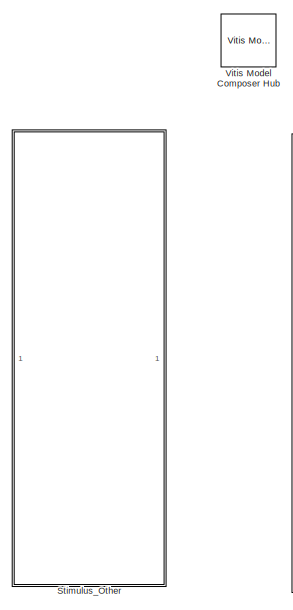
[diagram: root canvas - part 1/2, left side, full height]
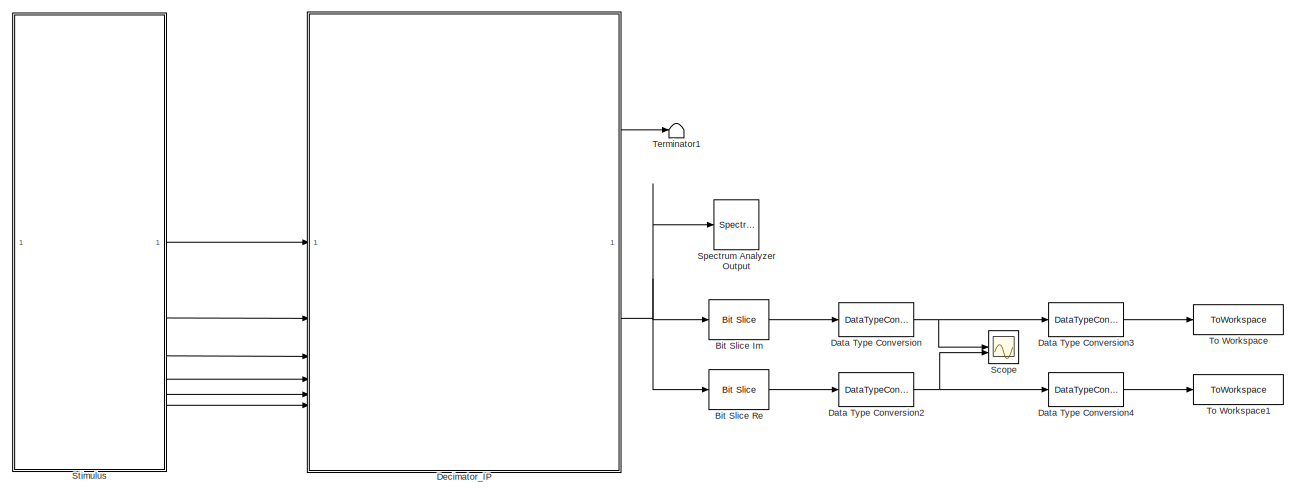
[diagram: root canvas - part 2/2, most of the canvas]
MODEL slx_8ccdf2021392
KIND model
CONFIG AbsTol = auto
CONFIG EnableMultiTasking = off
CONFIG FixedStep = auto
CONFIG MaxStep = auto
CONFIG MinStep = auto
CONFIG PreLoadFcn = startup
CONFIG RelTol = 1e-3
CONFIG SampleTimeConstraint = Unconstrained
CONFIG SolverName = VariableStepAuto
CONFIG StartTime = 0.0
CONFIG StopTime = 18000/(fclk*8)
BLOCK [Reference] Bit Slice Im  REF=hdlsllib/Logic and Bit
Operations/Bit Slice
  SourceBlock = hdlsllib/Logic and Bit\nOperations/Bit Slice
  SourceType = Bit Slice
BLOCK [Reference] Bit Slice Re  REF=hdlsllib/Logic and Bit
Operations/Bit Slice
  SourceBlock = hdlsllib/Logic and Bit\nOperations/Bit Slice
  SourceType = Bit Slice
BLOCK [DataTypeConversion] Data Type Conversion
  ConvertRealWorld = Stored Integer (SI)
  OutDataTypeStr = fixdt(1,16,15)
  RndMeth = Floor
  SaturateOnIntegerOverflow = off
BLOCK [DataTypeConversion] Data Type Conversion2
  ConvertRealWorld = Stored Integer (SI)
  OutDataTypeStr = fixdt(1,16,15)
  RndMeth = Floor
  SaturateOnIntegerOverflow = off
BLOCK [DataTypeConversion] Data Type Conversion3
  OutDataTypeStr = double
  RndMeth = Floor
BLOCK [DataTypeConversion] Data Type Conversion4
  OutDataTypeStr = double
  RndMeth = Floor
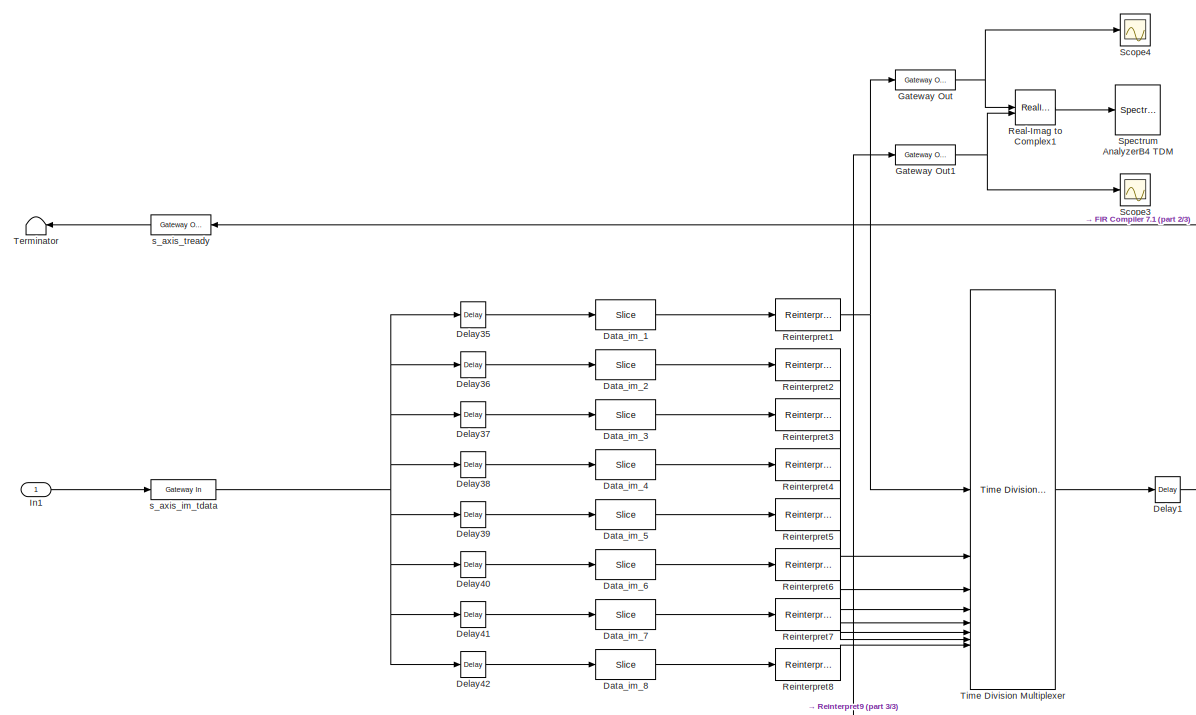
[diagram: Decimator_IP - part 1/3, top left region]
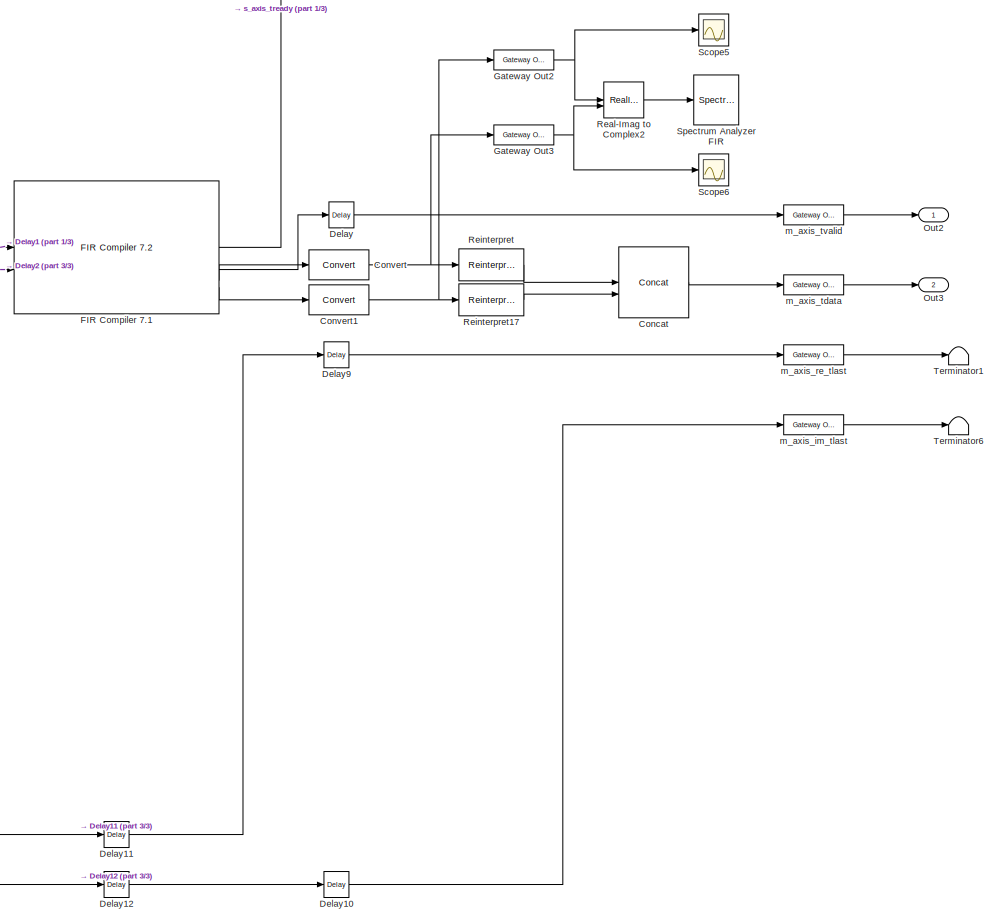
[diagram: Decimator_IP - part 2/3, bottom right region]
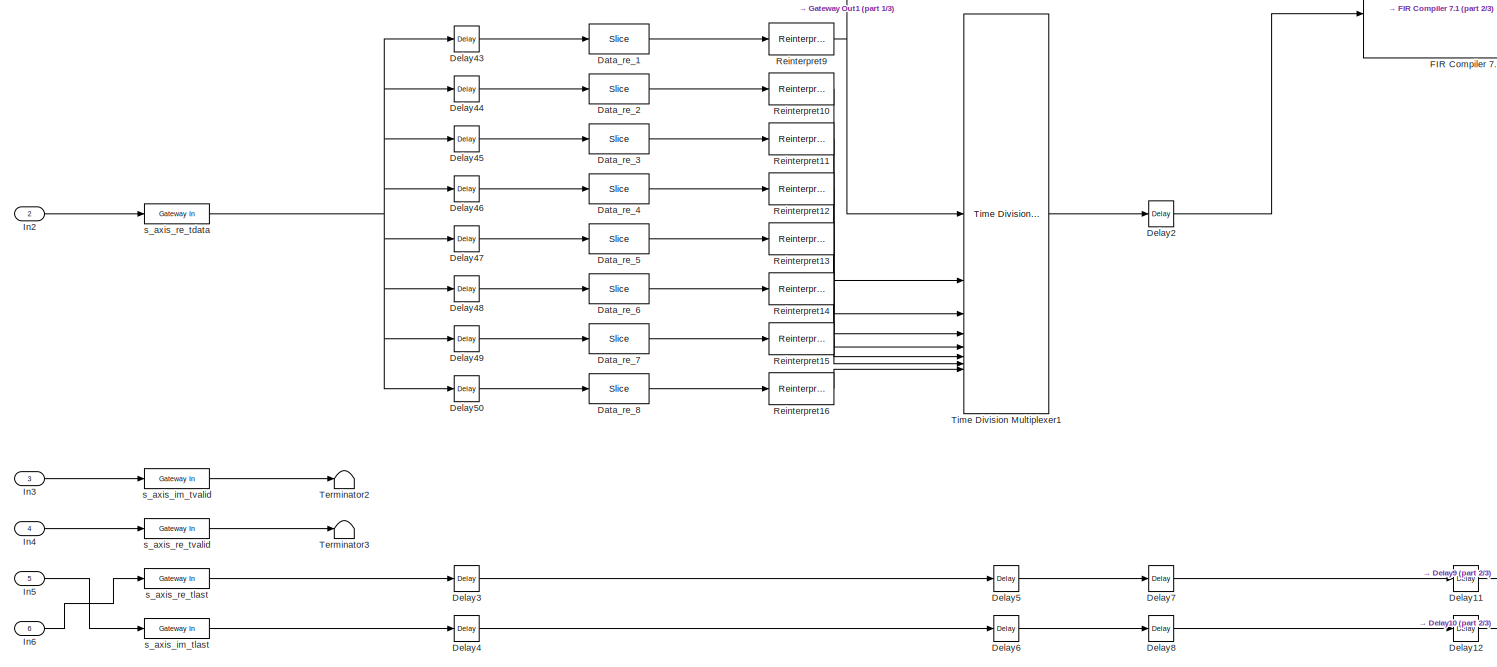
[diagram: Decimator_IP - part 3/3, bottom left region]
BLOCK [SubSystem] Decimator_IP
BLOCK [Reference] Decimator_IP/Concat  REF=hdlBasic/Concat
  SourceBlock = hdlBasic/Concat
  SourceType = Bus Concatenator Block
BLOCK [Reference] Decimator_IP/Convert  REF=hdlBasic/Convert
  SourceBlock = hdlBasic/Convert
  SourceType = Type Converter Block
BLOCK [Reference] Decimator_IP/Convert1  REF=hdlBasic/Convert
  SourceBlock = hdlBasic/Convert
  SourceType = Type Converter Block
BLOCK [Reference] Decimator_IP/Data_im_1  REF=hdlBasic/Slice
  SourceBlock = hdlBasic/Slice
  SourceType = Bit Slice Extractor Block
BLOCK [Reference] Decimator_IP/Data_im_2  REF=hdlBasic/Slice
  SourceBlock = hdlBasic/Slice
  SourceType = Bit Slice Extractor Block
BLOCK [Reference] Decimator_IP/Data_im_3  REF=hdlBasic/Slice
  SourceBlock = hdlBasic/Slice
  SourceType = Bit Slice Extractor Block
BLOCK [Reference] Decimator_IP/Data_im_4  REF=hdlBasic/Slice
  SourceBlock = hdlBasic/Slice
  SourceType = Bit Slice Extractor Block
BLOCK [Reference] Decimator_IP/Data_im_5  REF=hdlBasic/Slice
  SourceBlock = hdlBasic/Slice
  SourceType = Bit Slice Extractor Block
BLOCK [Reference] Decimator_IP/Data_im_6  REF=hdlBasic/Slice
  SourceBlock = hdlBasic/Slice
  SourceType = Bit Slice Extractor Block
BLOCK [Reference] Decimator_IP/Data_im_7  REF=hdlBasic/Slice
  SourceBlock = hdlBasic/Slice
  SourceType = Bit Slice Extractor Block
BLOCK [Reference] Decimator_IP/Data_im_8  REF=hdlBasic/Slice
  SourceBlock = hdlBasic/Slice
  SourceType = Bit Slice Extractor Block
BLOCK [Reference] Decimator_IP/Data_re_1  REF=hdlBasic/Slice
  SourceBlock = hdlBasic/Slice
  SourceType = Bit Slice Extractor Block
BLOCK [Reference] Decimator_IP/Data_re_2  REF=hdlBasic/Slice
  SourceBlock = hdlBasic/Slice
  SourceType = Bit Slice Extractor Block
BLOCK [Reference] Decimator_IP/Data_re_3  REF=hdlBasic/Slice
  SourceBlock = hdlBasic/Slice
  SourceType = Bit Slice Extractor Block
BLOCK [Reference] Decimator_IP/Data_re_4  REF=hdlBasic/Slice
  SourceBlock = hdlBasic/Slice
  SourceType = Bit Slice Extractor Block
BLOCK [Reference] Decimator_IP/Data_re_5  REF=hdlBasic/Slice
  SourceBlock = hdlBasic/Slice
  SourceType = Bit Slice Extractor Block
BLOCK [Reference] Decimator_IP/Data_re_6  REF=hdlBasic/Slice
  SourceBlock = hdlBasic/Slice
  SourceType = Bit Slice Extractor Block
BLOCK [Reference] Decimator_IP/Data_re_7  REF=hdlBasic/Slice
  SourceBlock = hdlBasic/Slice
  SourceType = Bit Slice Extractor Block
BLOCK [Reference] Decimator_IP/Data_re_8  REF=hdlBasic/Slice
  SourceBlock = hdlBasic/Slice
  SourceType = Bit Slice Extractor Block
BLOCK [Reference] Decimator_IP/Delay  REF=hdlBasic/Delay
  SourceBlock = hdlBasic/Delay
  SourceType = Delay Block
BLOCK [Reference] Decimator_IP/Delay1  REF=hdlBasic/Delay
  SourceBlock = hdlBasic/Delay
  SourceType = Delay Block
BLOCK [Reference] Decimator_IP/Delay10  REF=hdlBasic/Delay
  SourceBlock = hdlBasic/Delay
  SourceType = Delay Block
BLOCK [Reference] Decimator_IP/Delay11  REF=hdlBasic/Delay
  SourceBlock = hdlBasic/Delay
  SourceType = Delay Block
BLOCK [Reference] Decimator_IP/Delay12  REF=hdlBasic/Delay
  SourceBlock = hdlBasic/Delay
  SourceType = Delay Block
BLOCK [Reference] Decimator_IP/Delay2  REF=hdlBasic/Delay
  SourceBlock = hdlBasic/Delay
  SourceType = Delay Block
BLOCK [Reference] Decimator_IP/Delay3  REF=hdlBasic/Delay
  SourceBlock = hdlBasic/Delay
  SourceType = Delay Block
BLOCK [Reference] Decimator_IP/Delay35  REF=hdlBasic/Delay
  SourceBlock = hdlBasic/Delay
  SourceType = Delay Block
BLOCK [Reference] Decimator_IP/Delay36  REF=hdlBasic/Delay
  SourceBlock = hdlBasic/Delay
  SourceType = Delay Block
BLOCK [Reference] Decimator_IP/Delay37  REF=hdlBasic/Delay
  SourceBlock = hdlBasic/Delay
  SourceType = Delay Block
BLOCK [Reference] Decimator_IP/Delay38  REF=hdlBasic/Delay
  SourceBlock = hdlBasic/Delay
  SourceType = Delay Block
BLOCK [Reference] Decimator_IP/Delay39  REF=hdlBasic/Delay
  SourceBlock = hdlBasic/Delay
  SourceType = Delay Block
BLOCK [Reference] Decimator_IP/Delay4  REF=hdlBasic/Delay
  SourceBlock = hdlBasic/Delay
  SourceType = Delay Block
BLOCK [Reference] Decimator_IP/Delay40  REF=hdlBasic/Delay
  SourceBlock = hdlBasic/Delay
  SourceType = Delay Block
BLOCK [Reference] Decimator_IP/Delay41  REF=hdlBasic/Delay
  SourceBlock = hdlBasic/Delay
  SourceType = Delay Block
BLOCK [Reference] Decimator_IP/Delay42  REF=hdlBasic/Delay
  SourceBlock = hdlBasic/Delay
  SourceType = Delay Block
BLOCK [Reference] Decimator_IP/Delay43  REF=hdlBasic/Delay
  SourceBlock = hdlBasic/Delay
  SourceType = Delay Block
BLOCK [Reference] Decimator_IP/Delay44  REF=hdlBasic/Delay
  SourceBlock = hdlBasic/Delay
  SourceType = Delay Block
BLOCK [Reference] Decimator_IP/Delay45  REF=hdlBasic/Delay
  SourceBlock = hdlBasic/Delay
  SourceType = Delay Block
BLOCK [Reference] Decimator_IP/Delay46  REF=hdlBasic/Delay
  SourceBlock = hdlBasic/Delay
  SourceType = Delay Block
BLOCK [Reference] Decimator_IP/Delay47  REF=hdlBasic/Delay
  SourceBlock = hdlBasic/Delay
  SourceType = Delay Block
BLOCK [Reference] Decimator_IP/Delay48  REF=hdlBasic/Delay
  SourceBlock = hdlBasic/Delay
  SourceType = Delay Block
BLOCK [Reference] Decimator_IP/Delay49  REF=hdlBasic/Delay
  SourceBlock = hdlBasic/Delay
  SourceType = Delay Block
BLOCK [Reference] Decimator_IP/Delay5  REF=hdlBasic/Delay
  SourceBlock = hdlBasic/Delay
  SourceType = Delay Block
BLOCK [Reference] Decimator_IP/Delay50  REF=hdlBasic/Delay
  SourceBlock = hdlBasic/Delay
  SourceType = Delay Block
BLOCK [Reference] Decimator_IP/Delay6  REF=hdlBasic/Delay
  SourceBlock = hdlBasic/Delay
  SourceType = Delay Block
BLOCK [Reference] Decimator_IP/Delay7  REF=hdlBasic/Delay
  SourceBlock = hdlBasic/Delay
  SourceType = Delay Block
BLOCK [Reference] Decimator_IP/Delay8  REF=hdlBasic/Delay
  SourceBlock = hdlBasic/Delay
  SourceType = Delay Block
BLOCK [Reference] Decimator_IP/Delay9  REF=hdlBasic/Delay
  SourceBlock = hdlBasic/Delay
  SourceType = Delay Block
BLOCK [Reference] Decimator_IP/FIR Compiler 7.1  REF=hdlDSPIP/FIR Compiler 7.2 
  SourceBlock = hdlDSPIP/FIR Compiler 7.2
  SourceType = FIR Compiler 7.2 Block
BLOCK [Reference] Decimator_IP/Gateway Out  REF=hdlBasic/Gateway Out
  Commented = on
  SourceBlock = hdlBasic/Gateway Out
  SourceType = Gateway Out Block
BLOCK [Reference] Decimator_IP/Gateway Out1  REF=hdlBasic/Gateway Out
  Commented = on
  SourceBlock = hdlBasic/Gateway Out
  SourceType = Gateway Out Block
BLOCK [Reference] Decimator_IP/Gateway Out2  REF=hdlBasic/Gateway Out
  Commented = on
  SourceBlock = hdlBasic/Gateway Out
  SourceType = Gateway Out Block
BLOCK [Reference] Decimator_IP/Gateway Out3  REF=hdlBasic/Gateway Out
  Commented = on
  SourceBlock = hdlBasic/Gateway Out
  SourceType = Gateway Out Block
BLOCK [Inport] Decimator_IP/In1
BLOCK [Inport] Decimator_IP/In2
  Port = 2
BLOCK [Inport] Decimator_IP/In3
  Port = 3
BLOCK [Inport] Decimator_IP/In4
  Port = 4
BLOCK [Inport] Decimator_IP/In5
  Port = 5
BLOCK [Inport] Decimator_IP/In6
  Port = 6
BLOCK [Outport] Decimator_IP/Out2
BLOCK [Outport] Decimator_IP/Out3
  Port = 2
BLOCK [RealImagToComplex] Decimator_IP/Real-Imag to Complex1
  Commented = on
BLOCK [RealImagToComplex] Decimator_IP/Real-Imag to Complex2
  Commented = on
BLOCK [Reference] Decimator_IP/Reinterpret  REF=hdlBasic/Reinterpret
  SourceBlock = hdlBasic/Reinterpret
  SourceType = Type Reinterpreter Block
BLOCK [Reference] Decimator_IP/Reinterpret1  REF=hdlBasic/Reinterpret
  SourceBlock = hdlBasic/Reinterpret
  SourceType = Type Reinterpreter Block
BLOCK [Reference] Decimator_IP/Reinterpret10  REF=hdlBasic/Reinterpret
  SourceBlock = hdlBasic/Reinterpret
  SourceType = Type Reinterpreter Block
BLOCK [Reference] Decimator_IP/Reinterpret11  REF=hdlBasic/Reinterpret
  SourceBlock = hdlBasic/Reinterpret
  SourceType = Type Reinterpreter Block
BLOCK [Reference] Decimator_IP/Reinterpret12  REF=hdlBasic/Reinterpret
  SourceBlock = hdlBasic/Reinterpret
  SourceType = Type Reinterpreter Block
BLOCK [Reference] Decimator_IP/Reinterpret13  REF=hdlBasic/Reinterpret
  SourceBlock = hdlBasic/Reinterpret
  SourceType = Type Reinterpreter Block
BLOCK [Reference] Decimator_IP/Reinterpret14  REF=hdlBasic/Reinterpret
  SourceBlock = hdlBasic/Reinterpret
  SourceType = Type Reinterpreter Block
BLOCK [Reference] Decimator_IP/Reinterpret15  REF=hdlBasic/Reinterpret
  SourceBlock = hdlBasic/Reinterpret
  SourceType = Type Reinterpreter Block
BLOCK [Reference] Decimator_IP/Reinterpret16  REF=hdlBasic/Reinterpret
  SourceBlock = hdlBasic/Reinterpret
  SourceType = Type Reinterpreter Block
BLOCK [Reference] Decimator_IP/Reinterpret17  REF=hdlBasic/Reinterpret
  SourceBlock = hdlBasic/Reinterpret
  SourceType = Type Reinterpreter Block
BLOCK [Reference] Decimator_IP/Reinterpret2  REF=hdlBasic/Reinterpret
  SourceBlock = hdlBasic/Reinterpret
  SourceType = Type Reinterpreter Block
BLOCK [Reference] Decimator_IP/Reinterpret3  REF=hdlBasic/Reinterpret
  SourceBlock = hdlBasic/Reinterpret
  SourceType = Type Reinterpreter Block
BLOCK [Reference] Decimator_IP/Reinterpret4  REF=hdlBasic/Reinterpret
  SourceBlock = hdlBasic/Reinterpret
  SourceType = Type Reinterpreter Block
BLOCK [Reference] Decimator_IP/Reinterpret5  REF=hdlBasic/Reinterpret
  SourceBlock = hdlBasic/Reinterpret
  SourceType = Type Reinterpreter Block
BLOCK [Reference] Decimator_IP/Reinterpret6  REF=hdlBasic/Reinterpret
  SourceBlock = hdlBasic/Reinterpret
  SourceType = Type Reinterpreter Block
BLOCK [Reference] Decimator_IP/Reinterpret7  REF=hdlBasic/Reinterpret
  SourceBlock = hdlBasic/Reinterpret
  SourceType = Type Reinterpreter Block
BLOCK [Reference] Decimator_IP/Reinterpret8  REF=hdlBasic/Reinterpret
  SourceBlock = hdlBasic/Reinterpret
  SourceType = Type Reinterpreter Block
BLOCK [Reference] Decimator_IP/Reinterpret9  REF=hdlBasic/Reinterpret
  SourceBlock = hdlBasic/Reinterpret
  SourceType = Type Reinterpreter Block
BLOCK [Scope] Decimator_IP/Scope3
  Commented = on
  Floating = off
  NumInputPorts = 1
  ScopeSpecificationString = Simulink.scopes.TimeScopeBlockCfg('CurrentConfiguration', extmgr.ConfigurationSet(extmgr.Configuration('Core','General UI',true),extmgr.Configuration('Core','Source UI',true),extmgr.Configuration('Sources','WiredSimulink',true,'DataLoggingVariableName','ScopeData1'),extmgr.Configuration('Visuals','Time Domain',true,'SerializedDisplays',{struct('MinYLimReal','-1.125','MaxYLimReal','1.125','YLabelRe...<+2213ch>
BLOCK [Scope] Decimator_IP/Scope4
  Commented = on
  Floating = off
  NumInputPorts = 1
  ScopeSpecificationString = Simulink.scopes.TimeScopeBlockCfg('CurrentConfiguration', extmgr.ConfigurationSet(extmgr.Configuration('Core','General UI',true),extmgr.Configuration('Core','Source UI',true),extmgr.Configuration('Sources','WiredSimulink',true,'DataLoggingVariableName','ScopeData2'),extmgr.Configuration('Visuals','Time Domain',true,'SerializedDisplays',{struct('MinYLimReal','-1.125','MaxYLimReal','1.125','YLabelRe...<+2213ch>
BLOCK [Scope] Decimator_IP/Scope5
  Commented = on
  Floating = off
  NumInputPorts = 1
  ScopeSpecificationString = Simulink.scopes.TimeScopeBlockCfg('CurrentConfiguration', extmgr.ConfigurationSet(extmgr.Configuration('Core','General UI',true),extmgr.Configuration('Core','Source UI',true),extmgr.Configuration('Sources','WiredSimulink',true,'DataLoggingVariableName','ScopeData3'),extmgr.Configuration('Visuals','Time Domain',true,'SerializedDisplays',{struct('MinYLimReal','-1.125','MaxYLimReal','1.125','YLabelRe...<+2213ch>
BLOCK [Scope] Decimator_IP/Scope6
  Commented = on
  Floating = off
  NumInputPorts = 1
  ScopeSpecificationString = Simulink.scopes.TimeScopeBlockCfg('CurrentConfiguration', extmgr.ConfigurationSet(extmgr.Configuration('Core','General UI',true),extmgr.Configuration('Core','Source UI',true),extmgr.Configuration('Sources','WiredSimulink',true,'DataLoggingVariableName','ScopeData4'),extmgr.Configuration('Visuals','Time Domain',true,'SerializedDisplays',{struct('MinYLimReal','-1.125','MaxYLimReal','1.125','YLabelRe...<+2213ch>
BLOCK [SpectrumAnalyzer] Decimator_IP/Spectrum Analyzer FIR
  Commented = on
  GraphicalSettings = {"GraphicalSettings":{"Style":{"BackgroundColor":[0.12941176470588237,0.12941176470588237,0.12941176470588237],"AxesColor":[0.07058823529411765,0.07058823529411765,0.07058823529411765],"LabelsColor":[0.8509803921568627,0.8509803921568627,0.8509803921568627],"PreserveColors":false,"Visible":[true],"LineStyle":["-"],"LineColor":[[1,1,0.06666666666666667]],"LineWidth":[1.5],"Marker":["none"],"FontSiz...<+928ch>  <repeated x6 — deduplicated; at blocks: Spectrum Analyzer FIR, Spectrum AnalyzerB4 TDM, Spectrum Analyzer Output, Spectrum Analyzer B4 Concat, Spectrum Analyzer Input>
  ScopeFrameLocation = window
  SelectedToolstripTab = spectrumAnalyzerToolstrip.measurementsTab
  Span = 64000000
  StartFrequency = -32000000
  StopFrequency = 32000000
  WasSavedAsWebScope = on
  WindowPosition = [481.000000,-215.000000,800.000000,500.000000,]
  YLimits = [-174.72319427,-62.57953967]
BLOCK [SpectrumAnalyzer] Decimator_IP/Spectrum AnalyzerB4 TDM
  Commented = on
  ScopeFrameLocation = window
  SelectedToolstripTab = spectrumAnalyzerToolstrip.measurementsTab
  Span = 512000000
  StartFrequency = -256000000
  StopFrequency = 256000000
  WasSavedAsWebScope = on
  WindowPosition = [274.000000,72.000000,800.000000,500.000000,]
  YLimits = [-191.4141624,-56.39167641]
BLOCK [Terminator] Decimator_IP/Terminator
  NameLocation = top
BLOCK [Terminator] Decimator_IP/Terminator1
BLOCK [Terminator] Decimator_IP/Terminator2
BLOCK [Terminator] Decimator_IP/Terminator3
BLOCK [Terminator] Decimator_IP/Terminator6
BLOCK [Reference] Decimator_IP/Time Division Multiplexer  REF=hdlBasic/Time Division Multiplexer
  SourceBlock = hdlBasic/Time Division Multiplexer
  SourceType = Time Division Multiplexer Block
BLOCK [Reference] Decimator_IP/Time Division Multiplexer1  REF=hdlBasic/Time Division Multiplexer
  SourceBlock = hdlBasic/Time Division Multiplexer
  SourceType = Time Division Multiplexer Block
BLOCK [Reference] Decimator_IP/m_axis_im_tlast  REF=hdlBasic/Gateway Out
  SourceBlock = hdlBasic/Gateway Out
  SourceType = Gateway Out Block
BLOCK [Reference] Decimator_IP/m_axis_re_tlast  REF=hdlBasic/Gateway Out
  SourceBlock = hdlBasic/Gateway Out
  SourceType = Gateway Out Block
BLOCK [Reference] Decimator_IP/m_axis_tdata  REF=hdlBasic/Gateway Out
  SourceBlock = hdlBasic/Gateway Out
  SourceType = Gateway Out Block
BLOCK [Reference] Decimator_IP/m_axis_tvalid  REF=hdlBasic/Gateway Out
  SourceBlock = hdlBasic/Gateway Out
  SourceType = Gateway Out Block
BLOCK [Reference] Decimator_IP/s_axis_im_tdata  REF=hdlBasic/Gateway In
  SourceBlock = hdlBasic/Gateway In
  SourceType = Gateway In Block
BLOCK [Reference] Decimator_IP/s_axis_im_tlast  REF=hdlBasic/Gateway In
  SourceBlock = hdlBasic/Gateway In
  SourceType = Gateway In Block
BLOCK [Reference] Decimator_IP/s_axis_im_tvalid  REF=hdlBasic/Gateway In
  SourceBlock = hdlBasic/Gateway In
  SourceType = Gateway In Block
BLOCK [Reference] Decimator_IP/s_axis_re_tdata  REF=hdlBasic/Gateway In
  SourceBlock = hdlBasic/Gateway In
  SourceType = Gateway In Block
BLOCK [Reference] Decimator_IP/s_axis_re_tlast  REF=hdlBasic/Gateway In
  SourceBlock = hdlBasic/Gateway In
  SourceType = Gateway In Block
BLOCK [Reference] Decimator_IP/s_axis_re_tvalid  REF=hdlBasic/Gateway In
  Commented = on
  SourceBlock = hdlBasic/Gateway In
  SourceType = Gateway In Block
BLOCK [Reference] Decimator_IP/s_axis_tready  REF=hdlBasic/Gateway Out
  SourceBlock = hdlBasic/Gateway Out
  SourceType = Gateway Out Block
BLOCK [Scope] Scope
  Floating = off
  NumInputPorts = 2
  ScopeSpecificationString = Simulink.scopes.TimeScopeBlockCfg('CurrentConfiguration', extmgr.ConfigurationSet(extmgr.Configuration('Core','General UI',true),extmgr.Configuration('Core','Source UI',true),extmgr.Configuration('Sources','WiredSimulink',true),extmgr.Configuration('Visuals','Time Domain',true,'SerializedDisplays',{struct('MinYLimReal','-0.12363','MaxYLimReal','0.12357','YLabelReal','','MinYLimMag','0.00000','MaxY...<+2013ch>
BLOCK [SpectrumAnalyzer] Spectrum Analyzer Output
  ScopeFrameLocation = window
  SelectedToolstripTab = spectrumAnalyzerToolstrip.measurementsTab
  Span = 64000000
  StartFrequency = -32000000
  StopFrequency = 32000000
  WasSavedAsWebScope = on
  WindowPosition = [2932.000000,-90.000000,799.000000,500.000000,]
  YLimits = [41.6132,126.1267]
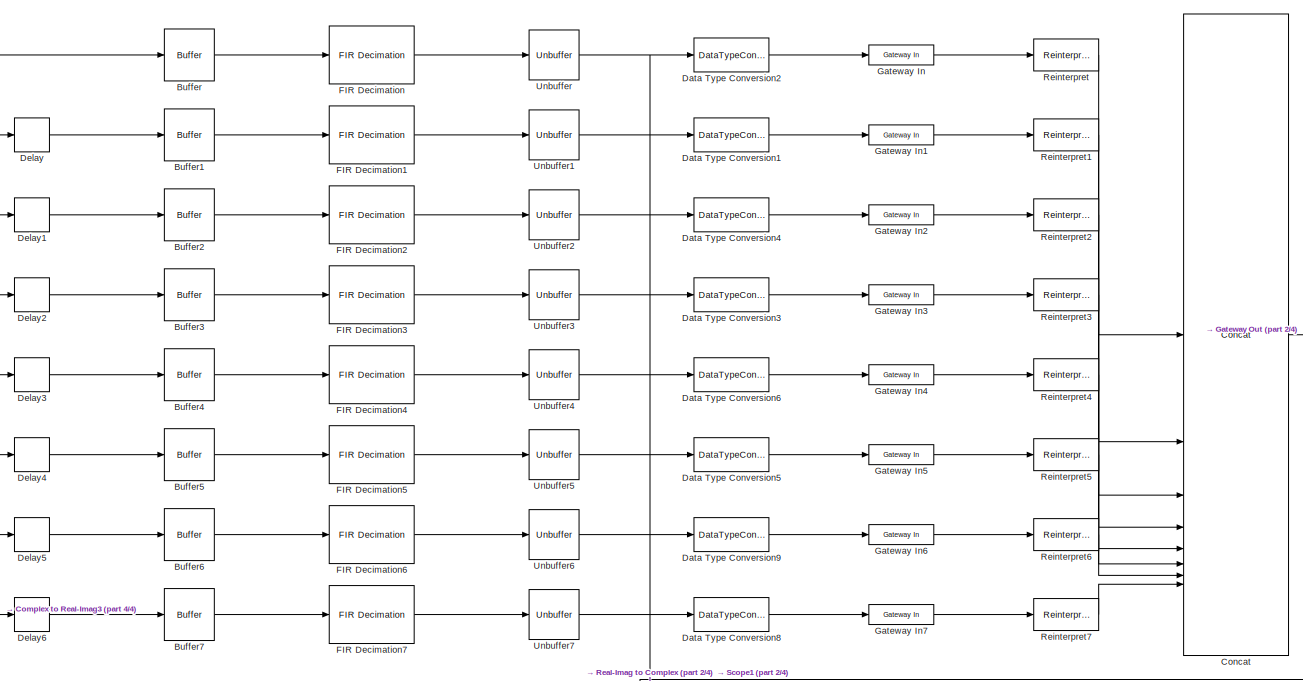
[diagram: Stimulus - part 1/4, top center region]
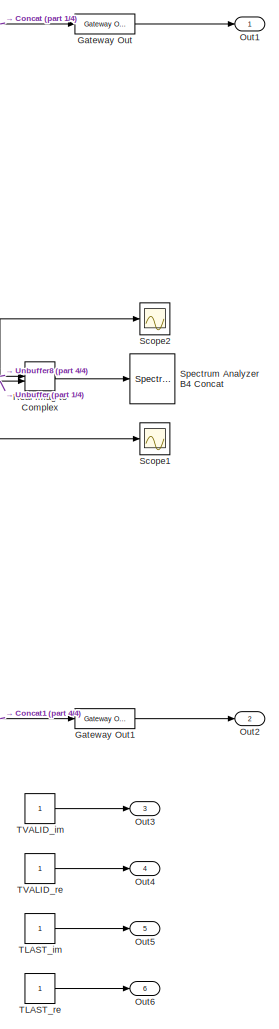
[diagram: Stimulus - part 2/4, right side, full height]
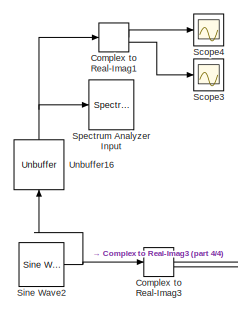
[diagram: Stimulus - part 3/4, middle left region]
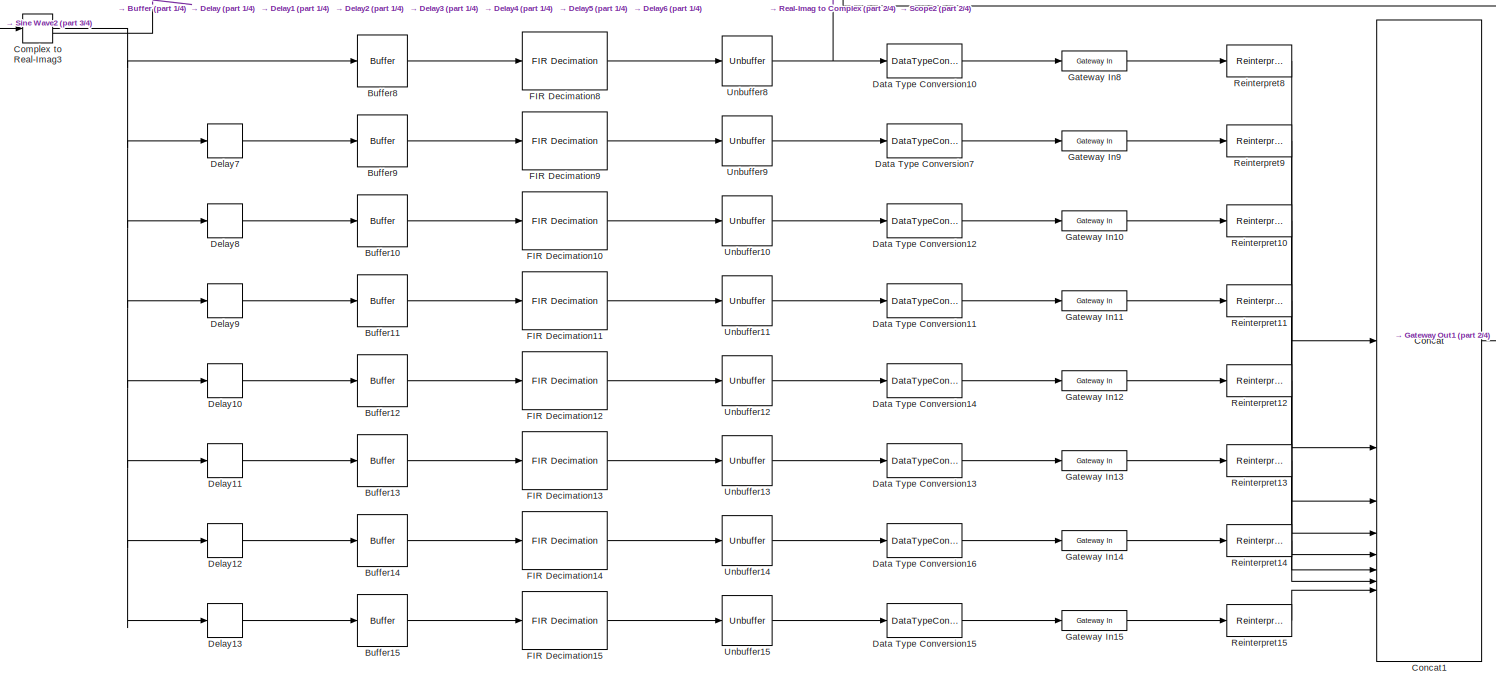
[diagram: Stimulus - part 4/4, full width, bottom band]
BLOCK [SubSystem] Stimulus
BLOCK [Buffer] Stimulus/Buffer
  OutputFrames = off
BLOCK [Buffer] Stimulus/Buffer1
  OutputFrames = off
BLOCK [Buffer] Stimulus/Buffer10
  OutputFrames = off
BLOCK [Buffer] Stimulus/Buffer11
  OutputFrames = off
BLOCK [Buffer] Stimulus/Buffer12
  OutputFrames = off
BLOCK [Buffer] Stimulus/Buffer13
  OutputFrames = off
BLOCK [Buffer] Stimulus/Buffer14
  OutputFrames = off
BLOCK [Buffer] Stimulus/Buffer15
  OutputFrames = off
BLOCK [Buffer] Stimulus/Buffer2
  OutputFrames = off
BLOCK [Buffer] Stimulus/Buffer3
  OutputFrames = off
BLOCK [Buffer] Stimulus/Buffer4
  OutputFrames = off
BLOCK [Buffer] Stimulus/Buffer5
  OutputFrames = off
BLOCK [Buffer] Stimulus/Buffer6
  OutputFrames = off
BLOCK [Buffer] Stimulus/Buffer7
  OutputFrames = off
BLOCK [Buffer] Stimulus/Buffer8
  OutputFrames = off
BLOCK [Buffer] Stimulus/Buffer9
  OutputFrames = off
BLOCK [ComplexToRealImag] Stimulus/Complex to Real-Imag1
BLOCK [ComplexToRealImag] Stimulus/Complex to Real-Imag3
BLOCK [Reference] Stimulus/Concat  REF=hdlBasic/Concat
  SourceBlock = hdlBasic/Concat
  SourceType = Bus Concatenator Block
BLOCK [Reference] Stimulus/Concat1  REF=hdlBasic/Concat
  SourceBlock = hdlBasic/Concat
  SourceType = Bus Concatenator Block
BLOCK [DataTypeConversion] Stimulus/Data Type Conversion1
  OutDataTypeStr = fixdt(1,16,15)
  RndMeth = Floor
BLOCK [DataTypeConversion] Stimulus/Data Type Conversion10
  OutDataTypeStr = fixdt(1,16,15)
  RndMeth = Floor
BLOCK [DataTypeConversion] Stimulus/Data Type Conversion11
  OutDataTypeStr = fixdt(1,16,15)
  RndMeth = Floor
BLOCK [DataTypeConversion] Stimulus/Data Type Conversion12
  OutDataTypeStr = fixdt(1,16,15)
  RndMeth = Floor
BLOCK [DataTypeConversion] Stimulus/Data Type Conversion13
  OutDataTypeStr = fixdt(1,16,15)
  RndMeth = Floor
BLOCK [DataTypeConversion] Stimulus/Data Type Conversion14
  OutDataTypeStr = fixdt(1,16,15)
  RndMeth = Floor
BLOCK [DataTypeConversion] Stimulus/Data Type Conversion15
  OutDataTypeStr = fixdt(1,16,15)
  RndMeth = Floor
BLOCK [DataTypeConversion] Stimulus/Data Type Conversion16
  OutDataTypeStr = fixdt(1,16,15)
  RndMeth = Floor
BLOCK [DataTypeConversion] Stimulus/Data Type Conversion2
  OutDataTypeStr = fixdt(1,16,15)
  RndMeth = Floor
BLOCK [DataTypeConversion] Stimulus/Data Type Conversion3
  OutDataTypeStr = fixdt(1,16,15)
  RndMeth = Floor
BLOCK [DataTypeConversion] Stimulus/Data Type Conversion4
  OutDataTypeStr = fixdt(1,16,15)
  RndMeth = Floor
BLOCK [DataTypeConversion] Stimulus/Data Type Conversion5
  OutDataTypeStr = fixdt(1,16,15)
  RndMeth = Floor
BLOCK [DataTypeConversion] Stimulus/Data Type Conversion6
  OutDataTypeStr = fixdt(1,16,15)
  RndMeth = Floor
BLOCK [DataTypeConversion] Stimulus/Data Type Conversion7
  OutDataTypeStr = fixdt(1,16,15)
  RndMeth = Floor
BLOCK [DataTypeConversion] Stimulus/Data Type Conversion8
  OutDataTypeStr = fixdt(1,16,15)
  RndMeth = Floor
BLOCK [DataTypeConversion] Stimulus/Data Type Conversion9
  OutDataTypeStr = fixdt(1,16,15)
  RndMeth = Floor
BLOCK [Delay] Stimulus/Delay
  DelayLength = 1
  InitialCondition = 0
  InputPortMap = u0
BLOCK [Delay] Stimulus/Delay1
  InitialCondition = 0
  InputPortMap = u0
BLOCK [Delay] Stimulus/Delay10
  DelayLength = 4
  InitialCondition = 0
  InputPortMap = u0
BLOCK [Delay] Stimulus/Delay11
  DelayLength = 5
  InitialCondition = 0
  InputPortMap = u0
BLOCK [Delay] Stimulus/Delay12
  DelayLength = 6
  InitialCondition = 0
  InputPortMap = u0
BLOCK [Delay] Stimulus/Delay13
  DelayLength = 7
  InitialCondition = 0
  InputPortMap = u0
BLOCK [Delay] Stimulus/Delay2
  DelayLength = 3
  InitialCondition = 0
  InputPortMap = u0
BLOCK [Delay] Stimulus/Delay3
  DelayLength = 4
  InitialCondition = 0
  InputPortMap = u0
BLOCK [Delay] Stimulus/Delay4
  DelayLength = 5
  InitialCondition = 0
  InputPortMap = u0
BLOCK [Delay] Stimulus/Delay5
  DelayLength = 6
  InitialCondition = 0
  InputPortMap = u0
BLOCK [Delay] Stimulus/Delay6
  DelayLength = 7
  InitialCondition = 0
  InputPortMap = u0
BLOCK [Delay] Stimulus/Delay7
  DelayLength = 1
  InitialCondition = 0
  InputPortMap = u0
BLOCK [Delay] Stimulus/Delay8
  InitialCondition = 0
  InputPortMap = u0
BLOCK [Delay] Stimulus/Delay9
  DelayLength = 3
  InitialCondition = 0
  InputPortMap = u0
BLOCK [Reference] Stimulus/FIR Decimation  REF=dspmlti4/FIR
Decimation
  SourceBlock = dspmlti4/FIR\nDecimation
  SourceType = FIR Decimation
  UserDataPersistent = on
BLOCK [Reference] Stimulus/FIR Decimation1  REF=dspmlti4/FIR
Decimation
  SourceBlock = dspmlti4/FIR\nDecimation
  SourceType = FIR Decimation
  UserDataPersistent = on
BLOCK [Reference] Stimulus/FIR Decimation10  REF=dspmlti4/FIR
Decimation
  SourceBlock = dspmlti4/FIR\nDecimation
  SourceType = FIR Decimation
  UserDataPersistent = on
BLOCK [Reference] Stimulus/FIR Decimation11  REF=dspmlti4/FIR
Decimation
  SourceBlock = dspmlti4/FIR\nDecimation
  SourceType = FIR Decimation
  UserDataPersistent = on
BLOCK [Reference] Stimulus/FIR Decimation12  REF=dspmlti4/FIR
Decimation
  SourceBlock = dspmlti4/FIR\nDecimation
  SourceType = FIR Decimation
  UserDataPersistent = on
BLOCK [Reference] Stimulus/FIR Decimation13  REF=dspmlti4/FIR
Decimation
  SourceBlock = dspmlti4/FIR\nDecimation
  SourceType = FIR Decimation
  UserDataPersistent = on
BLOCK [Reference] Stimulus/FIR Decimation14  REF=dspmlti4/FIR
Decimation
  SourceBlock = dspmlti4/FIR\nDecimation
  SourceType = FIR Decimation
  UserDataPersistent = on
BLOCK [Reference] Stimulus/FIR Decimation15  REF=dspmlti4/FIR
Decimation
  SourceBlock = dspmlti4/FIR\nDecimation
  SourceType = FIR Decimation
  UserDataPersistent = on
BLOCK [Reference] Stimulus/FIR Decimation2  REF=dspmlti4/FIR
Decimation
  SourceBlock = dspmlti4/FIR\nDecimation
  SourceType = FIR Decimation
  UserDataPersistent = on
BLOCK [Reference] Stimulus/FIR Decimation3  REF=dspmlti4/FIR
Decimation
  SourceBlock = dspmlti4/FIR\nDecimation
  SourceType = FIR Decimation
  UserDataPersistent = on
BLOCK [Reference] Stimulus/FIR Decimation4  REF=dspmlti4/FIR
Decimation
  SourceBlock = dspmlti4/FIR\nDecimation
  SourceType = FIR Decimation
  UserDataPersistent = on
BLOCK [Reference] Stimulus/FIR Decimation5  REF=dspmlti4/FIR
Decimation
  SourceBlock = dspmlti4/FIR\nDecimation
  SourceType = FIR Decimation
  UserDataPersistent = on
BLOCK [Reference] Stimulus/FIR Decimation6  REF=dspmlti4/FIR
Decimation
  SourceBlock = dspmlti4/FIR\nDecimation
  SourceType = FIR Decimation
  UserDataPersistent = on
BLOCK [Reference] Stimulus/FIR Decimation7  REF=dspmlti4/FIR
Decimation
  SourceBlock = dspmlti4/FIR\nDecimation
  SourceType = FIR Decimation
  UserDataPersistent = on
BLOCK [Reference] Stimulus/FIR Decimation8  REF=dspmlti4/FIR
Decimation
  SourceBlock = dspmlti4/FIR\nDecimation
  SourceType = FIR Decimation
  UserDataPersistent = on
BLOCK [Reference] Stimulus/FIR Decimation9  REF=dspmlti4/FIR
Decimation
  SourceBlock = dspmlti4/FIR\nDecimation
  SourceType = FIR Decimation
  UserDataPersistent = on
BLOCK [Reference] Stimulus/Gateway In  REF=hdlBasic/Gateway In
  SourceBlock = hdlBasic/Gateway In
  SourceType = Gateway In Block
BLOCK [Reference] Stimulus/Gateway In1  REF=hdlBasic/Gateway In
  SourceBlock = hdlBasic/Gateway In
  SourceType = Gateway In Block
BLOCK [Reference] Stimulus/Gateway In10  REF=hdlBasic/Gateway In
  SourceBlock = hdlBasic/Gateway In
  SourceType = Gateway In Block
BLOCK [Reference] Stimulus/Gateway In11  REF=hdlBasic/Gateway In
  SourceBlock = hdlBasic/Gateway In
  SourceType = Gateway In Block
BLOCK [Reference] Stimulus/Gateway In12  REF=hdlBasic/Gateway In
  SourceBlock = hdlBasic/Gateway In
  SourceType = Gateway In Block
BLOCK [Reference] Stimulus/Gateway In13  REF=hdlBasic/Gateway In
  SourceBlock = hdlBasic/Gateway In
  SourceType = Gateway In Block
BLOCK [Reference] Stimulus/Gateway In14  REF=hdlBasic/Gateway In
  SourceBlock = hdlBasic/Gateway In
  SourceType = Gateway In Block
BLOCK [Reference] Stimulus/Gateway In15  REF=hdlBasic/Gateway In
  SourceBlock = hdlBasic/Gateway In
  SourceType = Gateway In Block
BLOCK [Reference] Stimulus/Gateway In2  REF=hdlBasic/Gateway In
  SourceBlock = hdlBasic/Gateway In
  SourceType = Gateway In Block
BLOCK [Reference] Stimulus/Gateway In3  REF=hdlBasic/Gateway In
  SourceBlock = hdlBasic/Gateway In
  SourceType = Gateway In Block
BLOCK [Reference] Stimulus/Gateway In4  REF=hdlBasic/Gateway In
  SourceBlock = hdlBasic/Gateway In
  SourceType = Gateway In Block
BLOCK [Reference] Stimulus/Gateway In5  REF=hdlBasic/Gateway In
  SourceBlock = hdlBasic/Gateway In
  SourceType = Gateway In Block
BLOCK [Reference] Stimulus/Gateway In6  REF=hdlBasic/Gateway In
  SourceBlock = hdlBasic/Gateway In
  SourceType = Gateway In Block
BLOCK [Reference] Stimulus/Gateway In7  REF=hdlBasic/Gateway In
  SourceBlock = hdlBasic/Gateway In
  SourceType = Gateway In Block
BLOCK [Reference] Stimulus/Gateway In8  REF=hdlBasic/Gateway In
  SourceBlock = hdlBasic/Gateway In
  SourceType = Gateway In Block
BLOCK [Reference] Stimulus/Gateway In9  REF=hdlBasic/Gateway In
  SourceBlock = hdlBasic/Gateway In
  SourceType = Gateway In Block
BLOCK [Reference] Stimulus/Gateway Out  REF=hdlBasic/Gateway Out
  SourceBlock = hdlBasic/Gateway Out
  SourceType = Gateway Out Block
BLOCK [Reference] Stimulus/Gateway Out1  REF=hdlBasic/Gateway Out
  SourceBlock = hdlBasic/Gateway Out
  SourceType = Gateway Out Block
BLOCK [Outport] Stimulus/Out1
BLOCK [Outport] Stimulus/Out2
  Port = 2
BLOCK [Outport] Stimulus/Out3
  Port = 3
BLOCK [Outport] Stimulus/Out4
  Port = 4
BLOCK [Outport] Stimulus/Out5
  Port = 5
BLOCK [Outport] Stimulus/Out6
  Port = 6
BLOCK [RealImagToComplex] Stimulus/Real-Imag to Complex
  Commented = on
BLOCK [Reference] Stimulus/Reinterpret  REF=hdlBasic/Reinterpret
  SourceBlock = hdlBasic/Reinterpret
  SourceType = Type Reinterpreter Block
BLOCK [Reference] Stimulus/Reinterpret1  REF=hdlBasic/Reinterpret
  SourceBlock = hdlBasic/Reinterpret
  SourceType = Type Reinterpreter Block
BLOCK [Reference] Stimulus/Reinterpret10  REF=hdlBasic/Reinterpret
  SourceBlock = hdlBasic/Reinterpret
  SourceType = Type Reinterpreter Block
BLOCK [Reference] Stimulus/Reinterpret11  REF=hdlBasic/Reinterpret
  SourceBlock = hdlBasic/Reinterpret
  SourceType = Type Reinterpreter Block
BLOCK [Reference] Stimulus/Reinterpret12  REF=hdlBasic/Reinterpret
  SourceBlock = hdlBasic/Reinterpret
  SourceType = Type Reinterpreter Block
BLOCK [Reference] Stimulus/Reinterpret13  REF=hdlBasic/Reinterpret
  SourceBlock = hdlBasic/Reinterpret
  SourceType = Type Reinterpreter Block
BLOCK [Reference] Stimulus/Reinterpret14  REF=hdlBasic/Reinterpret
  SourceBlock = hdlBasic/Reinterpret
  SourceType = Type Reinterpreter Block
BLOCK [Reference] Stimulus/Reinterpret15  REF=hdlBasic/Reinterpret
  SourceBlock = hdlBasic/Reinterpret
  SourceType = Type Reinterpreter Block
BLOCK [Reference] Stimulus/Reinterpret2  REF=hdlBasic/Reinterpret
  SourceBlock = hdlBasic/Reinterpret
  SourceType = Type Reinterpreter Block
BLOCK [Reference] Stimulus/Reinterpret3  REF=hdlBasic/Reinterpret
  SourceBlock = hdlBasic/Reinterpret
  SourceType = Type Reinterpreter Block
BLOCK [Reference] Stimulus/Reinterpret4  REF=hdlBasic/Reinterpret
  SourceBlock = hdlBasic/Reinterpret
  SourceType = Type Reinterpreter Block
BLOCK [Reference] Stimulus/Reinterpret5  REF=hdlBasic/Reinterpret
  SourceBlock = hdlBasic/Reinterpret
  SourceType = Type Reinterpreter Block
BLOCK [Reference] Stimulus/Reinterpret6  REF=hdlBasic/Reinterpret
  SourceBlock = hdlBasic/Reinterpret
  SourceType = Type Reinterpreter Block
BLOCK [Reference] Stimulus/Reinterpret7  REF=hdlBasic/Reinterpret
  SourceBlock = hdlBasic/Reinterpret
  SourceType = Type Reinterpreter Block
BLOCK [Reference] Stimulus/Reinterpret8  REF=hdlBasic/Reinterpret
  SourceBlock = hdlBasic/Reinterpret
  SourceType = Type Reinterpreter Block
BLOCK [Reference] Stimulus/Reinterpret9  REF=hdlBasic/Reinterpret
  SourceBlock = hdlBasic/Reinterpret
  SourceType = Type Reinterpreter Block
BLOCK [Scope] Stimulus/Scope1
  Commented = on
  Floating = off
  NumInputPorts = 1
  ScopeSpecificationString = Simulink.scopes.TimeScopeBlockCfg('CurrentConfiguration', extmgr.ConfigurationSet(extmgr.Configuration('Core','General UI',true),extmgr.Configuration('Core','Source UI',true),extmgr.Configuration('Sources','WiredSimulink',true,'DataLoggingVariableName','ScopeData5'),extmgr.Configuration('Visuals','Time Domain',true,'SerializedDisplays',{struct('MinYLimReal','-1.125','MaxYLimReal','1.125','YLabelRe...<+2213ch>
BLOCK [Scope] Stimulus/Scope2
  Commented = on
  Floating = off
  NumInputPorts = 1
  ScopeSpecificationString = Simulink.scopes.TimeScopeBlockCfg('CurrentConfiguration', extmgr.ConfigurationSet(extmgr.Configuration('Core','General UI',true),extmgr.Configuration('Core','Source UI',true),extmgr.Configuration('Sources','WiredSimulink',true,'DataLoggingVariableName','ScopeData6'),extmgr.Configuration('Visuals','Time Domain',true,'SerializedDisplays',{struct('MinYLimReal','-1.125','MaxYLimReal','1.125','YLabelRe...<+2213ch>
BLOCK [Scope] Stimulus/Scope3
  Floating = off
  NumInputPorts = 1
  ScopeSpecificationString = Simulink.scopes.TimeScopeBlockCfg('CurrentConfiguration', extmgr.ConfigurationSet(extmgr.Configuration('Core','General UI',true),extmgr.Configuration('Core','Source UI',true),extmgr.Configuration('Sources','WiredSimulink',true,'DataLoggingVariableName','ScopeData5'),extmgr.Configuration('Visuals','Time Domain',true,'SerializedDisplays',{struct('MinYLimReal','-1.125','MaxYLimReal','1.125','YLabelRe...<+2213ch>
BLOCK [Scope] Stimulus/Scope4
  Floating = off
  NumInputPorts = 1
  ScopeSpecificationString = Simulink.scopes.TimeScopeBlockCfg('CurrentConfiguration', extmgr.ConfigurationSet(extmgr.Configuration('Core','General UI',true),extmgr.Configuration('Core','Source UI',true),extmgr.Configuration('Sources','WiredSimulink',true,'DataLoggingVariableName','ScopeData6'),extmgr.Configuration('Visuals','Time Domain',true,'SerializedDisplays',{struct('MinYLimReal','-1.125','MaxYLimReal','1.125','YLabelRe...<+2213ch>
BLOCK [Reference] Stimulus/Sine Wave2  REF=dspsrcs4/Sine Wave
  SourceBlock = dspsrcs4/Sine Wave
  SourceType = Sine Wave
BLOCK [SpectrumAnalyzer] Stimulus/Spectrum Analyzer B4 Concat
  Commented = on
  ScopeFrameLocation = window
  SelectedToolstripTab = spectrumAnalyzerToolstrip.measurementsTab
  Span = 512000000
  StartFrequency = -256000000
  StopFrequency = 256000000
  WasSavedAsWebScope = on
  WindowPosition = [318.000000,62.000000,800.000000,500.000000,]
  YLimits = [-196.33262996,-55.84057964]
BLOCK [SpectrumAnalyzer] Stimulus/Spectrum Analyzer Input
  ScopeFrameLocation = window
  Span = 512000000
  StartFrequency = -256000000
  StopFrequency = 256000000
  WasSavedAsWebScope = on
  WindowPosition = [2124.000000,-89.000000,800.000000,500.000000,]
  YLimits = [-60.80358631,37.98091778]
BLOCK [Constant] Stimulus/TLAST_im
  SampleTime = 1/(fclk*8)
BLOCK [Constant] Stimulus/TLAST_re
  SampleTime = 1/(fclk*8)
BLOCK [Constant] Stimulus/TVALID_im
  SampleTime = 1/(fclk*8)
BLOCK [Constant] Stimulus/TVALID_re
  SampleTime = 1/(fclk*8)
BLOCK [Unbuffer] Stimulus/Unbuffer
BLOCK [Unbuffer] Stimulus/Unbuffer1
BLOCK [Unbuffer] Stimulus/Unbuffer10
BLOCK [Unbuffer] Stimulus/Unbuffer11
BLOCK [Unbuffer] Stimulus/Unbuffer12
BLOCK [Unbuffer] Stimulus/Unbuffer13
BLOCK [Unbuffer] Stimulus/Unbuffer14
BLOCK [Unbuffer] Stimulus/Unbuffer15
BLOCK [Unbuffer] Stimulus/Unbuffer16
  NameLocation = right
BLOCK [Unbuffer] Stimulus/Unbuffer2
BLOCK [Unbuffer] Stimulus/Unbuffer3
BLOCK [Unbuffer] Stimulus/Unbuffer4
BLOCK [Unbuffer] Stimulus/Unbuffer5
BLOCK [Unbuffer] Stimulus/Unbuffer6
BLOCK [Unbuffer] Stimulus/Unbuffer7
BLOCK [Unbuffer] Stimulus/Unbuffer8
BLOCK [Unbuffer] Stimulus/Unbuffer9
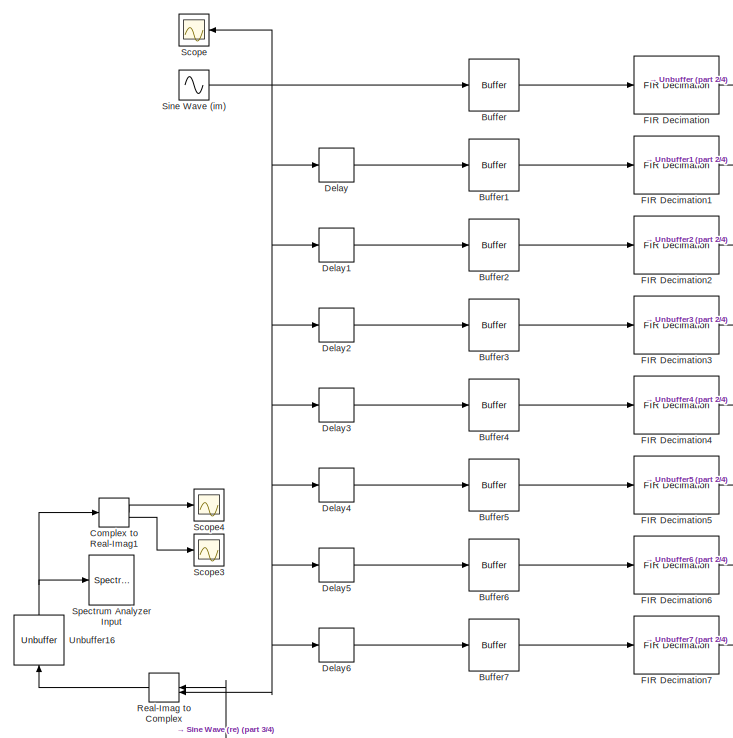
[diagram: Stimulus_Other - part 1/4, top left region]
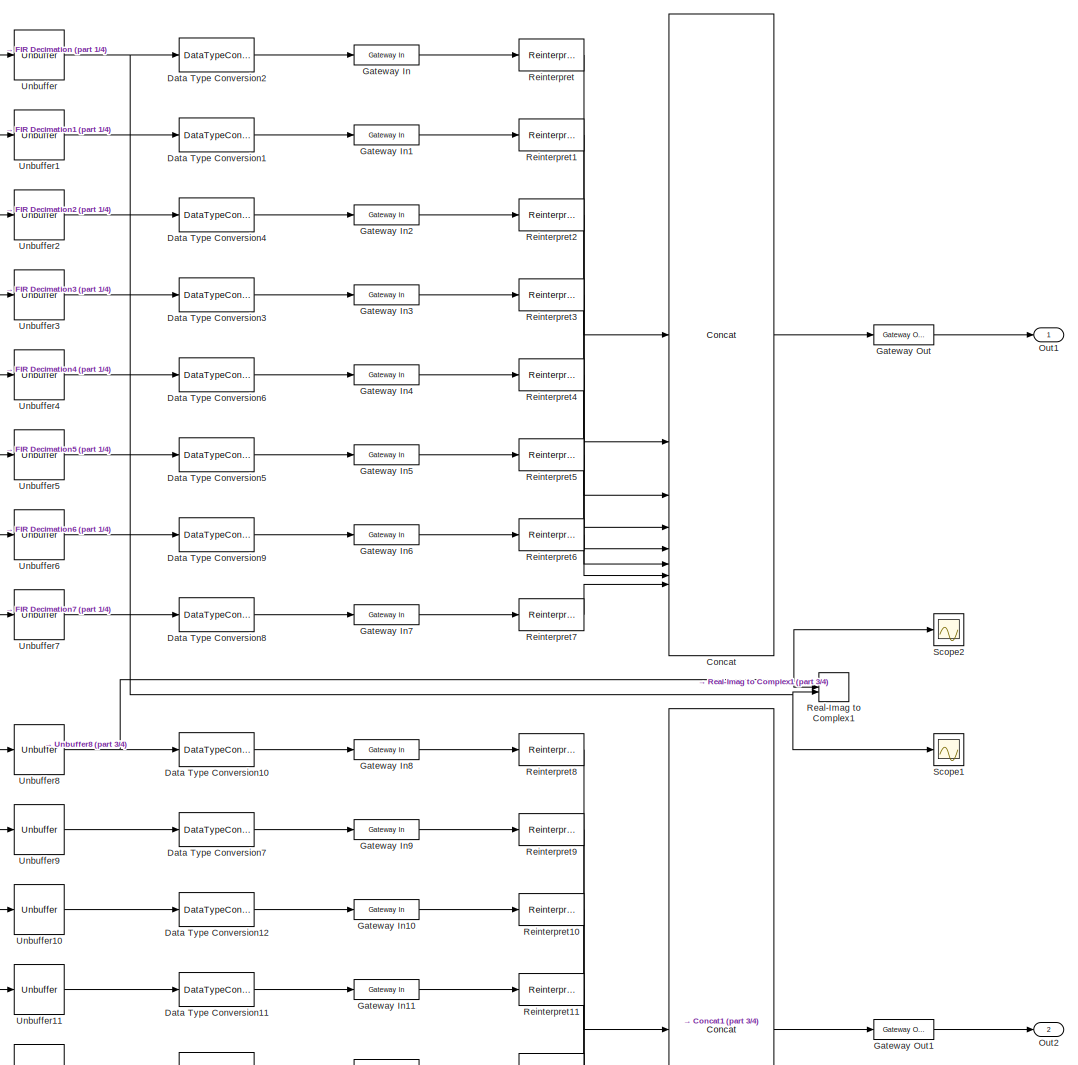
[diagram: Stimulus_Other - part 2/4, middle right region]
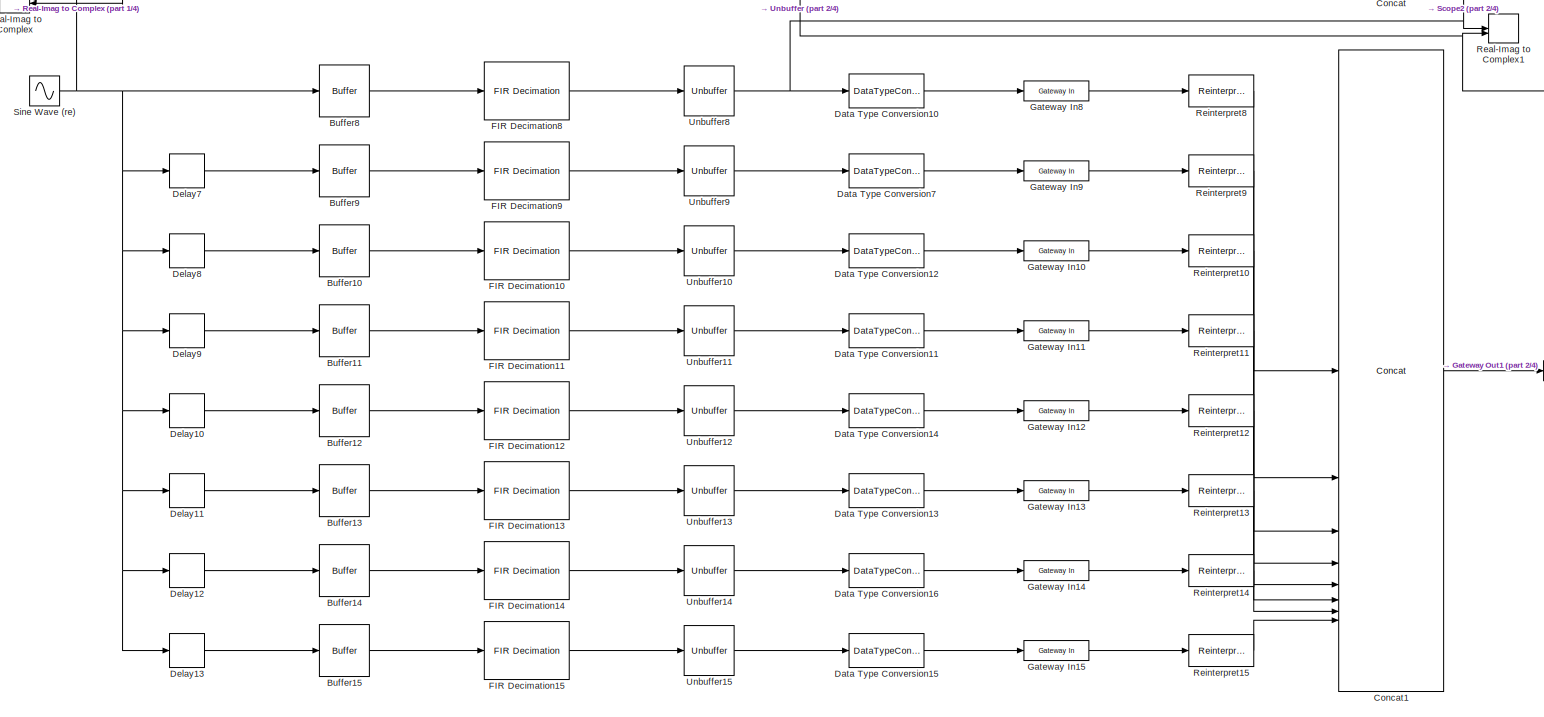
[diagram: Stimulus_Other - part 3/4, full width, bottom band]
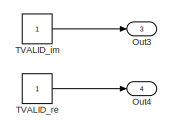
[diagram: Stimulus_Other - part 4/4, bottom right region]
BLOCK [SubSystem] Stimulus_Other
  Commented = on
BLOCK [Buffer] Stimulus_Other/Buffer
  OutputFrames = off
BLOCK [Buffer] Stimulus_Other/Buffer1
  OutputFrames = off
BLOCK [Buffer] Stimulus_Other/Buffer10
  OutputFrames = off
BLOCK [Buffer] Stimulus_Other/Buffer11
  OutputFrames = off
BLOCK [Buffer] Stimulus_Other/Buffer12
  OutputFrames = off
BLOCK [Buffer] Stimulus_Other/Buffer13
  OutputFrames = off
BLOCK [Buffer] Stimulus_Other/Buffer14
  OutputFrames = off
BLOCK [Buffer] Stimulus_Other/Buffer15
  OutputFrames = off
BLOCK [Buffer] Stimulus_Other/Buffer2
  OutputFrames = off
BLOCK [Buffer] Stimulus_Other/Buffer3
  OutputFrames = off
BLOCK [Buffer] Stimulus_Other/Buffer4
  OutputFrames = off
BLOCK [Buffer] Stimulus_Other/Buffer5
  OutputFrames = off
BLOCK [Buffer] Stimulus_Other/Buffer6
  OutputFrames = off
BLOCK [Buffer] Stimulus_Other/Buffer7
  OutputFrames = off
BLOCK [Buffer] Stimulus_Other/Buffer8
  OutputFrames = off
BLOCK [Buffer] Stimulus_Other/Buffer9
  OutputFrames = off
BLOCK [ComplexToRealImag] Stimulus_Other/Complex to Real-Imag1
BLOCK [Reference] Stimulus_Other/Concat  REF=hdlBasic/Concat
  SourceBlock = hdlBasic/Concat
  SourceType = Bus Concatenator Block
BLOCK [Reference] Stimulus_Other/Concat1  REF=hdlBasic/Concat
  SourceBlock = hdlBasic/Concat
  SourceType = Bus Concatenator Block
BLOCK [DataTypeConversion] Stimulus_Other/Data Type Conversion1
  OutDataTypeStr = fixdt(1,16,15)
  RndMeth = Floor
BLOCK [DataTypeConversion] Stimulus_Other/Data Type Conversion10
  OutDataTypeStr = fixdt(1,16,15)
  RndMeth = Floor
BLOCK [DataTypeConversion] Stimulus_Other/Data Type Conversion11
  OutDataTypeStr = fixdt(1,16,15)
  RndMeth = Floor
BLOCK [DataTypeConversion] Stimulus_Other/Data Type Conversion12
  OutDataTypeStr = fixdt(1,16,15)
  RndMeth = Floor
BLOCK [DataTypeConversion] Stimulus_Other/Data Type Conversion13
  OutDataTypeStr = fixdt(1,16,15)
  RndMeth = Floor
BLOCK [DataTypeConversion] Stimulus_Other/Data Type Conversion14
  OutDataTypeStr = fixdt(1,16,15)
  RndMeth = Floor
BLOCK [DataTypeConversion] Stimulus_Other/Data Type Conversion15
  OutDataTypeStr = fixdt(1,16,15)
  RndMeth = Floor
BLOCK [DataTypeConversion] Stimulus_Other/Data Type Conversion16
  OutDataTypeStr = fixdt(1,16,15)
  RndMeth = Floor
BLOCK [DataTypeConversion] Stimulus_Other/Data Type Conversion2
  OutDataTypeStr = fixdt(1,16,15)
  RndMeth = Floor
BLOCK [DataTypeConversion] Stimulus_Other/Data Type Conversion3
  OutDataTypeStr = fixdt(1,16,15)
  RndMeth = Floor
BLOCK [DataTypeConversion] Stimulus_Other/Data Type Conversion4
  OutDataTypeStr = fixdt(1,16,15)
  RndMeth = Floor
BLOCK [DataTypeConversion] Stimulus_Other/Data Type Conversion5
  OutDataTypeStr = fixdt(1,16,15)
  RndMeth = Floor
BLOCK [DataTypeConversion] Stimulus_Other/Data Type Conversion6
  OutDataTypeStr = fixdt(1,16,15)
  RndMeth = Floor
BLOCK [DataTypeConversion] Stimulus_Other/Data Type Conversion7
  OutDataTypeStr = fixdt(1,16,15)
  RndMeth = Floor
BLOCK [DataTypeConversion] Stimulus_Other/Data Type Conversion8
  OutDataTypeStr = fixdt(1,16,15)
  RndMeth = Floor
BLOCK [DataTypeConversion] Stimulus_Other/Data Type Conversion9
  OutDataTypeStr = fixdt(1,16,15)
  RndMeth = Floor
BLOCK [Delay] Stimulus_Other/Delay
  DelayLength = 1
  InitialCondition = 0
  InputPortMap = u0
BLOCK [Delay] Stimulus_Other/Delay1
  InitialCondition = 0
  InputPortMap = u0
BLOCK [Delay] Stimulus_Other/Delay10
  DelayLength = 4
  InitialCondition = 0
  InputPortMap = u0
BLOCK [Delay] Stimulus_Other/Delay11
  DelayLength = 5
  InitialCondition = 0
  InputPortMap = u0
BLOCK [Delay] Stimulus_Other/Delay12
  DelayLength = 6
  InitialCondition = 0
  InputPortMap = u0
BLOCK [Delay] Stimulus_Other/Delay13
  DelayLength = 7
  InitialCondition = 0
  InputPortMap = u0
BLOCK [Delay] Stimulus_Other/Delay2
  DelayLength = 3
  InitialCondition = 0
  InputPortMap = u0
BLOCK [Delay] Stimulus_Other/Delay3
  DelayLength = 4
  InitialCondition = 0
  InputPortMap = u0
BLOCK [Delay] Stimulus_Other/Delay4
  DelayLength = 5
  InitialCondition = 0
  InputPortMap = u0
BLOCK [Delay] Stimulus_Other/Delay5
  DelayLength = 6
  InitialCondition = 0
  InputPortMap = u0
BLOCK [Delay] Stimulus_Other/Delay6
  DelayLength = 7
  InitialCondition = 0
  InputPortMap = u0
BLOCK [Delay] Stimulus_Other/Delay7
  DelayLength = 1
  InitialCondition = 0
  InputPortMap = u0
BLOCK [Delay] Stimulus_Other/Delay8
  InitialCondition = 0
  InputPortMap = u0
BLOCK [Delay] Stimulus_Other/Delay9
  DelayLength = 3
  InitialCondition = 0
  InputPortMap = u0
BLOCK [Reference] Stimulus_Other/FIR Decimation  REF=dspmlti4/FIR
Decimation
  SourceBlock = dspmlti4/FIR\nDecimation
  SourceType = FIR Decimation
  UserDataPersistent = on
BLOCK [Reference] Stimulus_Other/FIR Decimation1  REF=dspmlti4/FIR
Decimation
  SourceBlock = dspmlti4/FIR\nDecimation
  SourceType = FIR Decimation
  UserDataPersistent = on
BLOCK [Reference] Stimulus_Other/FIR Decimation10  REF=dspmlti4/FIR
Decimation
  SourceBlock = dspmlti4/FIR\nDecimation
  SourceType = FIR Decimation
  UserDataPersistent = on
BLOCK [Reference] Stimulus_Other/FIR Decimation11  REF=dspmlti4/FIR
Decimation
  SourceBlock = dspmlti4/FIR\nDecimation
  SourceType = FIR Decimation
  UserDataPersistent = on
BLOCK [Reference] Stimulus_Other/FIR Decimation12  REF=dspmlti4/FIR
Decimation
  SourceBlock = dspmlti4/FIR\nDecimation
  SourceType = FIR Decimation
  UserDataPersistent = on
BLOCK [Reference] Stimulus_Other/FIR Decimation13  REF=dspmlti4/FIR
Decimation
  SourceBlock = dspmlti4/FIR\nDecimation
  SourceType = FIR Decimation
  UserDataPersistent = on
BLOCK [Reference] Stimulus_Other/FIR Decimation14  REF=dspmlti4/FIR
Decimation
  SourceBlock = dspmlti4/FIR\nDecimation
  SourceType = FIR Decimation
  UserDataPersistent = on
BLOCK [Reference] Stimulus_Other/FIR Decimation15  REF=dspmlti4/FIR
Decimation
  SourceBlock = dspmlti4/FIR\nDecimation
  SourceType = FIR Decimation
  UserDataPersistent = on
BLOCK [Reference] Stimulus_Other/FIR Decimation2  REF=dspmlti4/FIR
Decimation
  SourceBlock = dspmlti4/FIR\nDecimation
  SourceType = FIR Decimation
  UserDataPersistent = on
BLOCK [Reference] Stimulus_Other/FIR Decimation3  REF=dspmlti4/FIR
Decimation
  SourceBlock = dspmlti4/FIR\nDecimation
  SourceType = FIR Decimation
  UserDataPersistent = on
BLOCK [Reference] Stimulus_Other/FIR Decimation4  REF=dspmlti4/FIR
Decimation
  SourceBlock = dspmlti4/FIR\nDecimation
  SourceType = FIR Decimation
  UserDataPersistent = on
BLOCK [Reference] Stimulus_Other/FIR Decimation5  REF=dspmlti4/FIR
Decimation
  SourceBlock = dspmlti4/FIR\nDecimation
  SourceType = FIR Decimation
  UserDataPersistent = on
BLOCK [Reference] Stimulus_Other/FIR Decimation6  REF=dspmlti4/FIR
Decimation
  SourceBlock = dspmlti4/FIR\nDecimation
  SourceType = FIR Decimation
  UserDataPersistent = on
BLOCK [Reference] Stimulus_Other/FIR Decimation7  REF=dspmlti4/FIR
Decimation
  SourceBlock = dspmlti4/FIR\nDecimation
  SourceType = FIR Decimation
  UserDataPersistent = on
BLOCK [Reference] Stimulus_Other/FIR Decimation8  REF=dspmlti4/FIR
Decimation
  SourceBlock = dspmlti4/FIR\nDecimation
  SourceType = FIR Decimation
  UserDataPersistent = on
BLOCK [Reference] Stimulus_Other/FIR Decimation9  REF=dspmlti4/FIR
Decimation
  SourceBlock = dspmlti4/FIR\nDecimation
  SourceType = FIR Decimation
  UserDataPersistent = on
BLOCK [Reference] Stimulus_Other/Gateway In  REF=hdlBasic/Gateway In
  SourceBlock = hdlBasic/Gateway In
  SourceType = Gateway In Block
BLOCK [Reference] Stimulus_Other/Gateway In1  REF=hdlBasic/Gateway In
  SourceBlock = hdlBasic/Gateway In
  SourceType = Gateway In Block
BLOCK [Reference] Stimulus_Other/Gateway In10  REF=hdlBasic/Gateway In
  SourceBlock = hdlBasic/Gateway In
  SourceType = Gateway In Block
BLOCK [Reference] Stimulus_Other/Gateway In11  REF=hdlBasic/Gateway In
  SourceBlock = hdlBasic/Gateway In
  SourceType = Gateway In Block
BLOCK [Reference] Stimulus_Other/Gateway In12  REF=hdlBasic/Gateway In
  SourceBlock = hdlBasic/Gateway In
  SourceType = Gateway In Block
BLOCK [Reference] Stimulus_Other/Gateway In13  REF=hdlBasic/Gateway In
  SourceBlock = hdlBasic/Gateway In
  SourceType = Gateway In Block
BLOCK [Reference] Stimulus_Other/Gateway In14  REF=hdlBasic/Gateway In
  SourceBlock = hdlBasic/Gateway In
  SourceType = Gateway In Block
BLOCK [Reference] Stimulus_Other/Gateway In15  REF=hdlBasic/Gateway In
  SourceBlock = hdlBasic/Gateway In
  SourceType = Gateway In Block
BLOCK [Reference] Stimulus_Other/Gateway In2  REF=hdlBasic/Gateway In
  SourceBlock = hdlBasic/Gateway In
  SourceType = Gateway In Block
BLOCK [Reference] Stimulus_Other/Gateway In3  REF=hdlBasic/Gateway In
  SourceBlock = hdlBasic/Gateway In
  SourceType = Gateway In Block
BLOCK [Reference] Stimulus_Other/Gateway In4  REF=hdlBasic/Gateway In
  SourceBlock = hdlBasic/Gateway In
  SourceType = Gateway In Block
BLOCK [Reference] Stimulus_Other/Gateway In5  REF=hdlBasic/Gateway In
  SourceBlock = hdlBasic/Gateway In
  SourceType = Gateway In Block
BLOCK [Reference] Stimulus_Other/Gateway In6  REF=hdlBasic/Gateway In
  SourceBlock = hdlBasic/Gateway In
  SourceType = Gateway In Block
BLOCK [Reference] Stimulus_Other/Gateway In7  REF=hdlBasic/Gateway In
  SourceBlock = hdlBasic/Gateway In
  SourceType = Gateway In Block
BLOCK [Reference] Stimulus_Other/Gateway In8  REF=hdlBasic/Gateway In
  SourceBlock = hdlBasic/Gateway In
  SourceType = Gateway In Block
BLOCK [Reference] Stimulus_Other/Gateway In9  REF=hdlBasic/Gateway In
  SourceBlock = hdlBasic/Gateway In
  SourceType = Gateway In Block
BLOCK [Reference] Stimulus_Other/Gateway Out  REF=hdlBasic/Gateway Out
  SourceBlock = hdlBasic/Gateway Out
  SourceType = Gateway Out Block
BLOCK [Reference] Stimulus_Other/Gateway Out1  REF=hdlBasic/Gateway Out
  SourceBlock = hdlBasic/Gateway Out
  SourceType = Gateway Out Block
BLOCK [Outport] Stimulus_Other/Out1
BLOCK [Outport] Stimulus_Other/Out2
  Port = 2
BLOCK [Outport] Stimulus_Other/Out3
  Port = 3
BLOCK [Outport] Stimulus_Other/Out4
  Port = 4
BLOCK [RealImagToComplex] Stimulus_Other/Real-Imag to Complex
  NameLocation = top
BLOCK [RealImagToComplex] Stimulus_Other/Real-Imag to Complex1
BLOCK [Reference] Stimulus_Other/Reinterpret  REF=hdlBasic/Reinterpret
  SourceBlock = hdlBasic/Reinterpret
  SourceType = Type Reinterpreter Block
BLOCK [Reference] Stimulus_Other/Reinterpret1  REF=hdlBasic/Reinterpret
  SourceBlock = hdlBasic/Reinterpret
  SourceType = Type Reinterpreter Block
BLOCK [Reference] Stimulus_Other/Reinterpret10  REF=hdlBasic/Reinterpret
  SourceBlock = hdlBasic/Reinterpret
  SourceType = Type Reinterpreter Block
BLOCK [Reference] Stimulus_Other/Reinterpret11  REF=hdlBasic/Reinterpret
  SourceBlock = hdlBasic/Reinterpret
  SourceType = Type Reinterpreter Block
BLOCK [Reference] Stimulus_Other/Reinterpret12  REF=hdlBasic/Reinterpret
  SourceBlock = hdlBasic/Reinterpret
  SourceType = Type Reinterpreter Block
BLOCK [Reference] Stimulus_Other/Reinterpret13  REF=hdlBasic/Reinterpret
  SourceBlock = hdlBasic/Reinterpret
  SourceType = Type Reinterpreter Block
BLOCK [Reference] Stimulus_Other/Reinterpret14  REF=hdlBasic/Reinterpret
  SourceBlock = hdlBasic/Reinterpret
  SourceType = Type Reinterpreter Block
BLOCK [Reference] Stimulus_Other/Reinterpret15  REF=hdlBasic/Reinterpret
  SourceBlock = hdlBasic/Reinterpret
  SourceType = Type Reinterpreter Block
BLOCK [Reference] Stimulus_Other/Reinterpret2  REF=hdlBasic/Reinterpret
  SourceBlock = hdlBasic/Reinterpret
  SourceType = Type Reinterpreter Block
BLOCK [Reference] Stimulus_Other/Reinterpret3  REF=hdlBasic/Reinterpret
  SourceBlock = hdlBasic/Reinterpret
  SourceType = Type Reinterpreter Block
BLOCK [Reference] Stimulus_Other/Reinterpret4  REF=hdlBasic/Reinterpret
  SourceBlock = hdlBasic/Reinterpret
  SourceType = Type Reinterpreter Block
BLOCK [Reference] Stimulus_Other/Reinterpret5  REF=hdlBasic/Reinterpret
  SourceBlock = hdlBasic/Reinterpret
  SourceType = Type Reinterpreter Block
BLOCK [Reference] Stimulus_Other/Reinterpret6  REF=hdlBasic/Reinterpret
  SourceBlock = hdlBasic/Reinterpret
  SourceType = Type Reinterpreter Block
BLOCK [Reference] Stimulus_Other/Reinterpret7  REF=hdlBasic/Reinterpret
  SourceBlock = hdlBasic/Reinterpret
  SourceType = Type Reinterpreter Block
BLOCK [Reference] Stimulus_Other/Reinterpret8  REF=hdlBasic/Reinterpret
  SourceBlock = hdlBasic/Reinterpret
  SourceType = Type Reinterpreter Block
BLOCK [Reference] Stimulus_Other/Reinterpret9  REF=hdlBasic/Reinterpret
  SourceBlock = hdlBasic/Reinterpret
  SourceType = Type Reinterpreter Block
BLOCK [Scope] Stimulus_Other/Scope
  Floating = off
  NameLocation = top
  NumInputPorts = 1
  ScopeSpecificationString = Simulink.scopes.TimeScopeBlockCfg('CurrentConfiguration', extmgr.ConfigurationSet(extmgr.Configuration('Core','General UI',true),extmgr.Configuration('Core','Source UI',true),extmgr.Configuration('Sources','WiredSimulink',true,'DataLoggingVariableName','ScopeData1'),extmgr.Configuration('Visuals','Time Domain',true,'SerializedDisplays',{struct('MinYLimReal','-0.25','MaxYLimReal','0.22286','YLabelR...<+1486ch>
BLOCK [Scope] Stimulus_Other/Scope1
  Floating = off
  NumInputPorts = 1
  ScopeSpecificationString = Simulink.scopes.TimeScopeBlockCfg('CurrentConfiguration', extmgr.ConfigurationSet(extmgr.Configuration('Core','General UI',true),extmgr.Configuration('Core','Source UI',true),extmgr.Configuration('Sources','WiredSimulink',true,'DataLoggingVariableName','ScopeData1'),extmgr.Configuration('Visuals','Time Domain',true,'SerializedDisplays',{struct('MinYLimReal','-1.125','MaxYLimReal','1.125','YLabelRe...<+2213ch>
BLOCK [Scope] Stimulus_Other/Scope2
  Floating = off
  NumInputPorts = 1
  ScopeSpecificationString = Simulink.scopes.TimeScopeBlockCfg('CurrentConfiguration', extmgr.ConfigurationSet(extmgr.Configuration('Core','General UI',true),extmgr.Configuration('Core','Source UI',true),extmgr.Configuration('Sources','WiredSimulink',true,'DataLoggingVariableName','ScopeData2'),extmgr.Configuration('Visuals','Time Domain',true,'SerializedDisplays',{struct('MinYLimReal','-1.125','MaxYLimReal','1.125','YLabelRe...<+2213ch>
BLOCK [Scope] Stimulus_Other/Scope3
  Floating = off
  NumInputPorts = 1
  ScopeSpecificationString = Simulink.scopes.TimeScopeBlockCfg('CurrentConfiguration', extmgr.ConfigurationSet(extmgr.Configuration('Core','General UI',true),extmgr.Configuration('Core','Source UI',true),extmgr.Configuration('Sources','WiredSimulink',true,'DataLoggingVariableName','ScopeData7'),extmgr.Configuration('Visuals','Time Domain',true,'SerializedDisplays',{struct('MinYLimReal','-1.125','MaxYLimReal','1.125','YLabelRe...<+2213ch>
BLOCK [Scope] Stimulus_Other/Scope4
  Floating = off
  NumInputPorts = 1
  ScopeSpecificationString = Simulink.scopes.TimeScopeBlockCfg('CurrentConfiguration', extmgr.ConfigurationSet(extmgr.Configuration('Core','General UI',true),extmgr.Configuration('Core','Source UI',true),extmgr.Configuration('Sources','WiredSimulink',true,'DataLoggingVariableName','ScopeData8'),extmgr.Configuration('Visuals','Time Domain',true,'SerializedDisplays',{struct('MinYLimReal','-1.125','MaxYLimReal','1.125','YLabelRe...<+2213ch>
BLOCK [Sin] Stimulus_Other/Sine Wave (im)
  Amplitude = .9
  Frequency = 4e6*pi
  SampleTime = 1/(fclk*8)
BLOCK [Sin] Stimulus_Other/Sine Wave (re)
  Amplitude = .9
  Frequency = 4e6*pi
  Phase = pi/2
  SampleTime = 1/(fclk*8)
BLOCK [SpectrumAnalyzer] Stimulus_Other/Spectrum Analyzer Input
  ScopeFrameLocation = window
  SelectedToolstripTab = spectrumAnalyzerToolstrip.measurementsTab
  Span = 512000000
  StartFrequency = -256000000
  StopFrequency = 256000000
  WasSavedAsWebScope = on
  WindowPosition = [182.000000,42.000000,800.000000,500.000000,]
  YLimits = [-60.80358631,37.98091778]
BLOCK [Constant] Stimulus_Other/TVALID_im
  SampleTime = 1/(fclk*8)
BLOCK [Constant] Stimulus_Other/TVALID_re
  SampleTime = 1/(fclk*8)
BLOCK [Unbuffer] Stimulus_Other/Unbuffer
BLOCK [Unbuffer] Stimulus_Other/Unbuffer1
BLOCK [Unbuffer] Stimulus_Other/Unbuffer10
BLOCK [Unbuffer] Stimulus_Other/Unbuffer11
BLOCK [Unbuffer] Stimulus_Other/Unbuffer12
BLOCK [Unbuffer] Stimulus_Other/Unbuffer13
BLOCK [Unbuffer] Stimulus_Other/Unbuffer14
BLOCK [Unbuffer] Stimulus_Other/Unbuffer15
BLOCK [Unbuffer] Stimulus_Other/Unbuffer16
  NameLocation = right
BLOCK [Unbuffer] Stimulus_Other/Unbuffer2
BLOCK [Unbuffer] Stimulus_Other/Unbuffer3
BLOCK [Unbuffer] Stimulus_Other/Unbuffer4
BLOCK [Unbuffer] Stimulus_Other/Unbuffer5
BLOCK [Unbuffer] Stimulus_Other/Unbuffer6
BLOCK [Unbuffer] Stimulus_Other/Unbuffer7
BLOCK [Unbuffer] Stimulus_Other/Unbuffer8
BLOCK [Unbuffer] Stimulus_Other/Unbuffer9
BLOCK [Terminator] Terminator1
BLOCK [ToWorkspace] To Workspace
  FixptAsFi = on
  MaxDataPoints = inf
  SampleTime = -1
  SaveFormat = Timeseries
  VariableName = data_im_decimated
BLOCK [ToWorkspace] To Workspace1
  FixptAsFi = on
  MaxDataPoints = inf
  SampleTime = -1
  SaveFormat = Timeseries
  VariableName = data_re_decimated
BLOCK [Reference] Vitis Model Composer Hub  REF=vmcUtilities/Vitis Model Composer Hub
  SourceBlock = vmcUtilities/Vitis Model Composer Hub
  SourceType = VMC Hub
  Tag = genX
  UserDataPersistent = on
LINE Bit Slice Im:1 -> Data Type Conversion:1
LINE Bit Slice Re:1 -> Data Type Conversion2:1
NET Data Type Conversion2:1 -> Data Type Conversion4:1, Scope:2
LINE Data Type Conversion3:1 -> To Workspace:1
LINE Data Type Conversion4:1 -> To Workspace1:1
NET Data Type Conversion:1 -> Data Type Conversion3:1, Scope:1
LINE Decimator_IP/Concat:1 -> Decimator_IP/m_axis_tdata:1
NET Decimator_IP/Convert1:1 -> Decimator_IP/Gateway Out2:1, Decimator_IP/Reinterpret17:1
NET Decimator_IP/Convert:1 -> Decimator_IP/Gateway Out3:1, Decimator_IP/Reinterpret:1
LINE Decimator_IP/Data_im_1:1 -> Decimator_IP/Reinterpret1:1
LINE Decimator_IP/Data_im_2:1 -> Decimator_IP/Reinterpret2:1
LINE Decimator_IP/Data_im_3:1 -> Decimator_IP/Reinterpret3:1
LINE Decimator_IP/Data_im_4:1 -> Decimator_IP/Reinterpret4:1
LINE Decimator_IP/Data_im_5:1 -> Decimator_IP/Reinterpret5:1
LINE Decimator_IP/Data_im_6:1 -> Decimator_IP/Reinterpret6:1
LINE Decimator_IP/Data_im_7:1 -> Decimator_IP/Reinterpret7:1
LINE Decimator_IP/Data_im_8:1 -> Decimator_IP/Reinterpret8:1
LINE Decimator_IP/Data_re_1:1 -> Decimator_IP/Reinterpret9:1
LINE Decimator_IP/Data_re_2:1 -> Decimator_IP/Reinterpret10:1
LINE Decimator_IP/Data_re_3:1 -> Decimator_IP/Reinterpret11:1
LINE Decimator_IP/Data_re_4:1 -> Decimator_IP/Reinterpret12:1
LINE Decimator_IP/Data_re_5:1 -> Decimator_IP/Reinterpret13:1
LINE Decimator_IP/Data_re_6:1 -> Decimator_IP/Reinterpret14:1
LINE Decimator_IP/Data_re_7:1 -> Decimator_IP/Reinterpret15:1
LINE Decimator_IP/Data_re_8:1 -> Decimator_IP/Reinterpret16:1
LINE Decimator_IP/Delay10:1 -> Decimator_IP/m_axis_im_tlast:1
LINE Decimator_IP/Delay11:1 -> Decimator_IP/Delay9:1
LINE Decimator_IP/Delay12:1 -> Decimator_IP/Delay10:1
LINE Decimator_IP/Delay1:1 -> Decimator_IP/FIR Compiler 7.1:1
LINE Decimator_IP/Delay2:1 -> Decimator_IP/FIR Compiler 7.1:2
LINE Decimator_IP/Delay35:1 -> Decimator_IP/Data_im_1:1
LINE Decimator_IP/Delay36:1 -> Decimator_IP/Data_im_2:1
LINE Decimator_IP/Delay37:1 -> Decimator_IP/Data_im_3:1
LINE Decimator_IP/Delay38:1 -> Decimator_IP/Data_im_4:1
LINE Decimator_IP/Delay39:1 -> Decimator_IP/Data_im_5:1
LINE Decimator_IP/Delay3:1 -> Decimator_IP/Delay5:1
LINE Decimator_IP/Delay40:1 -> Decimator_IP/Data_im_6:1
LINE Decimator_IP/Delay41:1 -> Decimator_IP/Data_im_7:1
LINE Decimator_IP/Delay42:1 -> Decimator_IP/Data_im_8:1
LINE Decimator_IP/Delay43:1 -> Decimator_IP/Data_re_1:1
LINE Decimator_IP/Delay44:1 -> Decimator_IP/Data_re_2:1
LINE Decimator_IP/Delay45:1 -> Decimator_IP/Data_re_3:1
LINE Decimator_IP/Delay46:1 -> Decimator_IP/Data_re_4:1
LINE Decimator_IP/Delay47:1 -> Decimator_IP/Data_re_5:1
LINE Decimator_IP/Delay48:1 -> Decimator_IP/Data_re_6:1
LINE Decimator_IP/Delay49:1 -> Decimator_IP/Data_re_7:1
LINE Decimator_IP/Delay4:1 -> Decimator_IP/Delay6:1
LINE Decimator_IP/Delay50:1 -> Decimator_IP/Data_re_8:1
LINE Decimator_IP/Delay5:1 -> Decimator_IP/Delay7:1
LINE Decimator_IP/Delay6:1 -> Decimator_IP/Delay8:1
LINE Decimator_IP/Delay7:1 -> Decimator_IP/Delay11:1
LINE Decimator_IP/Delay8:1 -> Decimator_IP/Delay12:1
LINE Decimator_IP/Delay9:1 -> Decimator_IP/m_axis_re_tlast:1
LINE Decimator_IP/Delay:1 -> Decimator_IP/m_axis_tvalid:1
LINE Decimator_IP/FIR Compiler 7.1:1 -> Decimator_IP/s_axis_tready:1
LINE Decimator_IP/FIR Compiler 7.1:2 -> Decimator_IP/Delay:1
LINE Decimator_IP/FIR Compiler 7.1:3 -> Decimator_IP/Convert:1
LINE Decimator_IP/FIR Compiler 7.1:4 -> Decimator_IP/Convert1:1
NET Decimator_IP/Gateway Out1:1 -> Decimator_IP/Real-Imag to Complex1:2, Decimator_IP/Scope3:1
NET Decimator_IP/Gateway Out2:1 -> Decimator_IP/Real-Imag to Complex2:1, Decimator_IP/Scope5:1
NET Decimator_IP/Gateway Out3:1 -> Decimator_IP/Real-Imag to Complex2:2, Decimator_IP/Scope6:1
NET Decimator_IP/Gateway Out:1 -> Decimator_IP/Real-Imag to Complex1:1, Decimator_IP/Scope4:1
LINE Decimator_IP/In1:1 -> Decimator_IP/s_axis_im_tdata:1
LINE Decimator_IP/In2:1 -> Decimator_IP/s_axis_re_tdata:1
LINE Decimator_IP/In3:1 -> Decimator_IP/s_axis_im_tvalid:1
LINE Decimator_IP/In4:1 -> Decimator_IP/s_axis_re_tvalid:1
LINE Decimator_IP/In5:1 -> Decimator_IP/s_axis_im_tlast:1
LINE Decimator_IP/In6:1 -> Decimator_IP/s_axis_re_tlast:1
LINE Decimator_IP/Real-Imag to Complex1:1 -> Decimator_IP/Spectrum AnalyzerB4 TDM:1
LINE Decimator_IP/Real-Imag to Complex2:1 -> Decimator_IP/Spectrum Analyzer FIR:1
LINE Decimator_IP/Reinterpret10:1 -> Decimator_IP/Time Division Multiplexer1:2
LINE Decimator_IP/Reinterpret11:1 -> Decimator_IP/Time Division Multiplexer1:3
LINE Decimator_IP/Reinterpret12:1 -> Decimator_IP/Time Division Multiplexer1:4
LINE Decimator_IP/Reinterpret13:1 -> Decimator_IP/Time Division Multiplexer1:5
LINE Decimator_IP/Reinterpret14:1 -> Decimator_IP/Time Division Multiplexer1:6
LINE Decimator_IP/Reinterpret15:1 -> Decimator_IP/Time Division Multiplexer1:7
LINE Decimator_IP/Reinterpret16:1 -> Decimator_IP/Time Division Multiplexer1:8
LINE Decimator_IP/Reinterpret17:1 -> Decimator_IP/Concat:2
NET Decimator_IP/Reinterpret1:1 -> Decimator_IP/Gateway Out:1, Decimator_IP/Time Division Multiplexer:1
LINE Decimator_IP/Reinterpret2:1 -> Decimator_IP/Time Division Multiplexer:2
LINE Decimator_IP/Reinterpret3:1 -> Decimator_IP/Time Division Multiplexer:3
LINE Decimator_IP/Reinterpret4:1 -> Decimator_IP/Time Division Multiplexer:4
LINE Decimator_IP/Reinterpret5:1 -> Decimator_IP/Time Division Multiplexer:5
LINE Decimator_IP/Reinterpret6:1 -> Decimator_IP/Time Division Multiplexer:6
LINE Decimator_IP/Reinterpret7:1 -> Decimator_IP/Time Division Multiplexer:7
LINE Decimator_IP/Reinterpret8:1 -> Decimator_IP/Time Division Multiplexer:8
NET Decimator_IP/Reinterpret9:1 -> Decimator_IP/Gateway Out1:1, Decimator_IP/Time Division Multiplexer1:1
LINE Decimator_IP/Reinterpret:1 -> Decimator_IP/Concat:1
LINE Decimator_IP/Time Division Multiplexer1:1 -> Decimator_IP/Delay2:1
LINE Decimator_IP/Time Division Multiplexer:1 -> Decimator_IP/Delay1:1
LINE Decimator_IP/m_axis_im_tlast:1 -> Decimator_IP/Terminator6:1
LINE Decimator_IP/m_axis_re_tlast:1 -> Decimator_IP/Terminator1:1
LINE Decimator_IP/m_axis_tdata:1 -> Decimator_IP/Out3:1
LINE Decimator_IP/m_axis_tvalid:1 -> Decimator_IP/Out2:1
NET Decimator_IP/s_axis_im_tdata:1 -> Decimator_IP/Delay35:1, Decimator_IP/Delay36:1, Decimator_IP/Delay37:1, Decimator_IP/Delay38:1, Decimator_IP/Delay39:1, Decimator_IP/Delay40:1, Decimator_IP/Delay41:1, Decimator_IP/Delay42:1
LINE Decimator_IP/s_axis_im_tlast:1 -> Decimator_IP/Delay4:1
LINE Decimator_IP/s_axis_im_tvalid:1 -> Decimator_IP/Terminator2:1
NET Decimator_IP/s_axis_re_tdata:1 -> Decimator_IP/Delay43:1, Decimator_IP/Delay44:1, Decimator_IP/Delay45:1, Decimator_IP/Delay46:1, Decimator_IP/Delay47:1, Decimator_IP/Delay48:1, Decimator_IP/Delay49:1, Decimator_IP/Delay50:1
LINE Decimator_IP/s_axis_re_tlast:1 -> Decimator_IP/Delay3:1
LINE Decimator_IP/s_axis_re_tvalid:1 -> Decimator_IP/Terminator3:1
LINE Decimator_IP/s_axis_tready:1 -> Decimator_IP/Terminator:1
LINE Decimator_IP:1 -> Terminator1:1
NET Decimator_IP:2 -> Bit Slice Im:1, Bit Slice Re:1, Spectrum Analyzer Output:1
LINE Stimulus/Buffer10:1 -> Stimulus/FIR Decimation10:1
LINE Stimulus/Buffer11:1 -> Stimulus/FIR Decimation11:1
LINE Stimulus/Buffer12:1 -> Stimulus/FIR Decimation12:1
LINE Stimulus/Buffer13:1 -> Stimulus/FIR Decimation13:1
LINE Stimulus/Buffer14:1 -> Stimulus/FIR Decimation14:1
LINE Stimulus/Buffer15:1 -> Stimulus/FIR Decimation15:1
LINE Stimulus/Buffer1:1 -> Stimulus/FIR Decimation1:1
LINE Stimulus/Buffer2:1 -> Stimulus/FIR Decimation2:1
LINE Stimulus/Buffer3:1 -> Stimulus/FIR Decimation3:1
LINE Stimulus/Buffer4:1 -> Stimulus/FIR Decimation4:1
LINE Stimulus/Buffer5:1 -> Stimulus/FIR Decimation5:1
LINE Stimulus/Buffer6:1 -> Stimulus/FIR Decimation6:1
LINE Stimulus/Buffer7:1 -> Stimulus/FIR Decimation7:1
LINE Stimulus/Buffer8:1 -> Stimulus/FIR Decimation8:1
LINE Stimulus/Buffer9:1 -> Stimulus/FIR Decimation9:1
LINE Stimulus/Buffer:1 -> Stimulus/FIR Decimation:1
LINE Stimulus/Complex to Real-Imag1:1 -> Stimulus/Scope4:1
LINE Stimulus/Complex to Real-Imag1:2 -> Stimulus/Scope3:1
NET Stimulus/Complex to Real-Imag3:1 -> Stimulus/Buffer8:1, Stimulus/Delay10:1, Stimulus/Delay11:1, Stimulus/Delay12:1, Stimulus/Delay13:1, Stimulus/Delay7:1, Stimulus/Delay8:1, Stimulus/Delay9:1
NET Stimulus/Complex to Real-Imag3:2 -> Stimulus/Buffer:1, Stimulus/Delay1:1, Stimulus/Delay2:1, Stimulus/Delay3:1, Stimulus/Delay4:1, Stimulus/Delay5:1, Stimulus/Delay6:1, Stimulus/Delay:1
LINE Stimulus/Concat1:1 -> Stimulus/Gateway Out1:1
LINE Stimulus/Concat:1 -> Stimulus/Gateway Out:1
LINE Stimulus/Data Type Conversion10:1 -> Stimulus/Gateway In8:1
LINE Stimulus/Data Type Conversion11:1 -> Stimulus/Gateway In11:1
LINE Stimulus/Data Type Conversion12:1 -> Stimulus/Gateway In10:1
LINE Stimulus/Data Type Conversion13:1 -> Stimulus/Gateway In13:1
LINE Stimulus/Data Type Conversion14:1 -> Stimulus/Gateway In12:1
LINE Stimulus/Data Type Conversion15:1 -> Stimulus/Gateway In15:1
LINE Stimulus/Data Type Conversion16:1 -> Stimulus/Gateway In14:1
LINE Stimulus/Data Type Conversion1:1 -> Stimulus/Gateway In1:1
LINE Stimulus/Data Type Conversion2:1 -> Stimulus/Gateway In:1
LINE Stimulus/Data Type Conversion3:1 -> Stimulus/Gateway In3:1
LINE Stimulus/Data Type Conversion4:1 -> Stimulus/Gateway In2:1
LINE Stimulus/Data Type Conversion5:1 -> Stimulus/Gateway In5:1
LINE Stimulus/Data Type Conversion6:1 -> Stimulus/Gateway In4:1
LINE Stimulus/Data Type Conversion7:1 -> Stimulus/Gateway In9:1
LINE Stimulus/Data Type Conversion8:1 -> Stimulus/Gateway In7:1
LINE Stimulus/Data Type Conversion9:1 -> Stimulus/Gateway In6:1
LINE Stimulus/Delay10:1 -> Stimulus/Buffer12:1
LINE Stimulus/Delay11:1 -> Stimulus/Buffer13:1
LINE Stimulus/Delay12:1 -> Stimulus/Buffer14:1
LINE Stimulus/Delay13:1 -> Stimulus/Buffer15:1
LINE Stimulus/Delay1:1 -> Stimulus/Buffer2:1
LINE Stimulus/Delay2:1 -> Stimulus/Buffer3:1
LINE Stimulus/Delay3:1 -> Stimulus/Buffer4:1
LINE Stimulus/Delay4:1 -> Stimulus/Buffer5:1
LINE Stimulus/Delay5:1 -> Stimulus/Buffer6:1
LINE Stimulus/Delay6:1 -> Stimulus/Buffer7:1
LINE Stimulus/Delay7:1 -> Stimulus/Buffer9:1
LINE Stimulus/Delay8:1 -> Stimulus/Buffer10:1
LINE Stimulus/Delay9:1 -> Stimulus/Buffer11:1
LINE Stimulus/Delay:1 -> Stimulus/Buffer1:1
LINE Stimulus/FIR Decimation10:1 -> Stimulus/Unbuffer10:1
LINE Stimulus/FIR Decimation11:1 -> Stimulus/Unbuffer11:1
LINE Stimulus/FIR Decimation12:1 -> Stimulus/Unbuffer12:1
LINE Stimulus/FIR Decimation13:1 -> Stimulus/Unbuffer13:1
LINE Stimulus/FIR Decimation14:1 -> Stimulus/Unbuffer14:1
LINE Stimulus/FIR Decimation15:1 -> Stimulus/Unbuffer15:1
LINE Stimulus/FIR Decimation1:1 -> Stimulus/Unbuffer1:1
LINE Stimulus/FIR Decimation2:1 -> Stimulus/Unbuffer2:1
LINE Stimulus/FIR Decimation3:1 -> Stimulus/Unbuffer3:1
LINE Stimulus/FIR Decimation4:1 -> Stimulus/Unbuffer4:1
LINE Stimulus/FIR Decimation5:1 -> Stimulus/Unbuffer5:1
LINE Stimulus/FIR Decimation6:1 -> Stimulus/Unbuffer6:1
LINE Stimulus/FIR Decimation7:1 -> Stimulus/Unbuffer7:1
LINE Stimulus/FIR Decimation8:1 -> Stimulus/Unbuffer8:1
LINE Stimulus/FIR Decimation9:1 -> Stimulus/Unbuffer9:1
LINE Stimulus/FIR Decimation:1 -> Stimulus/Unbuffer:1
LINE Stimulus/Gateway In10:1 -> Stimulus/Reinterpret10:1
LINE Stimulus/Gateway In11:1 -> Stimulus/Reinterpret11:1
LINE Stimulus/Gateway In12:1 -> Stimulus/Reinterpret12:1
LINE Stimulus/Gateway In13:1 -> Stimulus/Reinterpret13:1
LINE Stimulus/Gateway In14:1 -> Stimulus/Reinterpret14:1
LINE Stimulus/Gateway In15:1 -> Stimulus/Reinterpret15:1
LINE Stimulus/Gateway In1:1 -> Stimulus/Reinterpret1:1
LINE Stimulus/Gateway In2:1 -> Stimulus/Reinterpret2:1
LINE Stimulus/Gateway In3:1 -> Stimulus/Reinterpret3:1
LINE Stimulus/Gateway In4:1 -> Stimulus/Reinterpret4:1
LINE Stimulus/Gateway In5:1 -> Stimulus/Reinterpret5:1
LINE Stimulus/Gateway In6:1 -> Stimulus/Reinterpret6:1
LINE Stimulus/Gateway In7:1 -> Stimulus/Reinterpret7:1
LINE Stimulus/Gateway In8:1 -> Stimulus/Reinterpret8:1
LINE Stimulus/Gateway In9:1 -> Stimulus/Reinterpret9:1
LINE Stimulus/Gateway In:1 -> Stimulus/Reinterpret:1
LINE Stimulus/Gateway Out1:1 -> Stimulus/Out2:1
LINE Stimulus/Gateway Out:1 -> Stimulus/Out1:1
LINE Stimulus/Real-Imag to Complex:1 -> Stimulus/Spectrum Analyzer B4 Concat:1
LINE Stimulus/Reinterpret10:1 -> Stimulus/Concat1:3
LINE Stimulus/Reinterpret11:1 -> Stimulus/Concat1:4
LINE Stimulus/Reinterpret12:1 -> Stimulus/Concat1:5
LINE Stimulus/Reinterpret13:1 -> Stimulus/Concat1:6
LINE Stimulus/Reinterpret14:1 -> Stimulus/Concat1:7
LINE Stimulus/Reinterpret15:1 -> Stimulus/Concat1:8
LINE Stimulus/Reinterpret1:1 -> Stimulus/Concat:2
LINE Stimulus/Reinterpret2:1 -> Stimulus/Concat:3
LINE Stimulus/Reinterpret3:1 -> Stimulus/Concat:4
LINE Stimulus/Reinterpret4:1 -> Stimulus/Concat:5
LINE Stimulus/Reinterpret5:1 -> Stimulus/Concat:6
LINE Stimulus/Reinterpret6:1 -> Stimulus/Concat:7
LINE Stimulus/Reinterpret7:1 -> Stimulus/Concat:8
LINE Stimulus/Reinterpret8:1 -> Stimulus/Concat1:1
LINE Stimulus/Reinterpret9:1 -> Stimulus/Concat1:2
LINE Stimulus/Reinterpret:1 -> Stimulus/Concat:1
NET Stimulus/Sine Wave2:1 -> Stimulus/Complex to Real-Imag3:1, Stimulus/Unbuffer16:1
LINE Stimulus/TLAST_im:1 -> Stimulus/Out5:1
LINE Stimulus/TLAST_re:1 -> Stimulus/Out6:1
LINE Stimulus/TVALID_im:1 -> Stimulus/Out3:1
LINE Stimulus/TVALID_re:1 -> Stimulus/Out4:1
LINE Stimulus/Unbuffer10:1 -> Stimulus/Data Type Conversion12:1
LINE Stimulus/Unbuffer11:1 -> Stimulus/Data Type Conversion11:1
LINE Stimulus/Unbuffer12:1 -> Stimulus/Data Type Conversion14:1
LINE Stimulus/Unbuffer13:1 -> Stimulus/Data Type Conversion13:1
LINE Stimulus/Unbuffer14:1 -> Stimulus/Data Type Conversion16:1
LINE Stimulus/Unbuffer15:1 -> Stimulus/Data Type Conversion15:1
NET Stimulus/Unbuffer16:1 -> Stimulus/Complex to Real-Imag1:1, Stimulus/Spectrum Analyzer Input:1
LINE Stimulus/Unbuffer1:1 -> Stimulus/Data Type Conversion1:1
LINE Stimulus/Unbuffer2:1 -> Stimulus/Data Type Conversion4:1
LINE Stimulus/Unbuffer3:1 -> Stimulus/Data Type Conversion3:1
LINE Stimulus/Unbuffer4:1 -> Stimulus/Data Type Conversion6:1
LINE Stimulus/Unbuffer5:1 -> Stimulus/Data Type Conversion5:1
LINE Stimulus/Unbuffer6:1 -> Stimulus/Data Type Conversion9:1
LINE Stimulus/Unbuffer7:1 -> Stimulus/Data Type Conversion8:1
NET Stimulus/Unbuffer8:1 -> Stimulus/Data Type Conversion10:1, Stimulus/Real-Imag to Complex:1, Stimulus/Scope2:1
LINE Stimulus/Unbuffer9:1 -> Stimulus/Data Type Conversion7:1
NET Stimulus/Unbuffer:1 -> Stimulus/Data Type Conversion2:1, Stimulus/Real-Imag to Complex:2, Stimulus/Scope1:1
LINE Stimulus:1 -> Decimator_IP:1
LINE Stimulus:2 -> Decimator_IP:2
LINE Stimulus:3 -> Decimator_IP:3
LINE Stimulus:4 -> Decimator_IP:4
LINE Stimulus:5 -> Decimator_IP:5
LINE Stimulus:6 -> Decimator_IP:6
LINE Stimulus_Other/Buffer10:1 -> Stimulus_Other/FIR Decimation10:1
LINE Stimulus_Other/Buffer11:1 -> Stimulus_Other/FIR Decimation11:1
LINE Stimulus_Other/Buffer12:1 -> Stimulus_Other/FIR Decimation12:1
LINE Stimulus_Other/Buffer13:1 -> Stimulus_Other/FIR Decimation13:1
LINE Stimulus_Other/Buffer14:1 -> Stimulus_Other/FIR Decimation14:1
LINE Stimulus_Other/Buffer15:1 -> Stimulus_Other/FIR Decimation15:1
LINE Stimulus_Other/Buffer1:1 -> Stimulus_Other/FIR Decimation1:1
LINE Stimulus_Other/Buffer2:1 -> Stimulus_Other/FIR Decimation2:1
LINE Stimulus_Other/Buffer3:1 -> Stimulus_Other/FIR Decimation3:1
LINE Stimulus_Other/Buffer4:1 -> Stimulus_Other/FIR Decimation4:1
LINE Stimulus_Other/Buffer5:1 -> Stimulus_Other/FIR Decimation5:1
LINE Stimulus_Other/Buffer6:1 -> Stimulus_Other/FIR Decimation6:1
LINE Stimulus_Other/Buffer7:1 -> Stimulus_Other/FIR Decimation7:1
LINE Stimulus_Other/Buffer8:1 -> Stimulus_Other/FIR Decimation8:1
LINE Stimulus_Other/Buffer9:1 -> Stimulus_Other/FIR Decimation9:1
LINE Stimulus_Other/Buffer:1 -> Stimulus_Other/FIR Decimation:1
LINE Stimulus_Other/Complex to Real-Imag1:1 -> Stimulus_Other/Scope4:1
LINE Stimulus_Other/Complex to Real-Imag1:2 -> Stimulus_Other/Scope3:1
LINE Stimulus_Other/Concat1:1 -> Stimulus_Other/Gateway Out1:1
LINE Stimulus_Other/Concat:1 -> Stimulus_Other/Gateway Out:1
LINE Stimulus_Other/Data Type Conversion10:1 -> Stimulus_Other/Gateway In8:1
LINE Stimulus_Other/Data Type Conversion11:1 -> Stimulus_Other/Gateway In11:1
LINE Stimulus_Other/Data Type Conversion12:1 -> Stimulus_Other/Gateway In10:1
LINE Stimulus_Other/Data Type Conversion13:1 -> Stimulus_Other/Gateway In13:1
LINE Stimulus_Other/Data Type Conversion14:1 -> Stimulus_Other/Gateway In12:1
LINE Stimulus_Other/Data Type Conversion15:1 -> Stimulus_Other/Gateway In15:1
LINE Stimulus_Other/Data Type Conversion16:1 -> Stimulus_Other/Gateway In14:1
LINE Stimulus_Other/Data Type Conversion1:1 -> Stimulus_Other/Gateway In1:1
LINE Stimulus_Other/Data Type Conversion2:1 -> Stimulus_Other/Gateway In:1
LINE Stimulus_Other/Data Type Conversion3:1 -> Stimulus_Other/Gateway In3:1
LINE Stimulus_Other/Data Type Conversion4:1 -> Stimulus_Other/Gateway In2:1
LINE Stimulus_Other/Data Type Conversion5:1 -> Stimulus_Other/Gateway In5:1
LINE Stimulus_Other/Data Type Conversion6:1 -> Stimulus_Other/Gateway In4:1
LINE Stimulus_Other/Data Type Conversion7:1 -> Stimulus_Other/Gateway In9:1
LINE Stimulus_Other/Data Type Conversion8:1 -> Stimulus_Other/Gateway In7:1
LINE Stimulus_Other/Data Type Conversion9:1 -> Stimulus_Other/Gateway In6:1
LINE Stimulus_Other/Delay10:1 -> Stimulus_Other/Buffer12:1
LINE Stimulus_Other/Delay11:1 -> Stimulus_Other/Buffer13:1
LINE Stimulus_Other/Delay12:1 -> Stimulus_Other/Buffer14:1
LINE Stimulus_Other/Delay13:1 -> Stimulus_Other/Buffer15:1
LINE Stimulus_Other/Delay1:1 -> Stimulus_Other/Buffer2:1
LINE Stimulus_Other/Delay2:1 -> Stimulus_Other/Buffer3:1
LINE Stimulus_Other/Delay3:1 -> Stimulus_Other/Buffer4:1
LINE Stimulus_Other/Delay4:1 -> Stimulus_Other/Buffer5:1
LINE Stimulus_Other/Delay5:1 -> Stimulus_Other/Buffer6:1
LINE Stimulus_Other/Delay6:1 -> Stimulus_Other/Buffer7:1
LINE Stimulus_Other/Delay7:1 -> Stimulus_Other/Buffer9:1
LINE Stimulus_Other/Delay8:1 -> Stimulus_Other/Buffer10:1
LINE Stimulus_Other/Delay9:1 -> Stimulus_Other/Buffer11:1
LINE Stimulus_Other/Delay:1 -> Stimulus_Other/Buffer1:1
LINE Stimulus_Other/FIR Decimation10:1 -> Stimulus_Other/Unbuffer10:1
LINE Stimulus_Other/FIR Decimation11:1 -> Stimulus_Other/Unbuffer11:1
LINE Stimulus_Other/FIR Decimation12:1 -> Stimulus_Other/Unbuffer12:1
LINE Stimulus_Other/FIR Decimation13:1 -> Stimulus_Other/Unbuffer13:1
LINE Stimulus_Other/FIR Decimation14:1 -> Stimulus_Other/Unbuffer14:1
LINE Stimulus_Other/FIR Decimation15:1 -> Stimulus_Other/Unbuffer15:1
LINE Stimulus_Other/FIR Decimation1:1 -> Stimulus_Other/Unbuffer1:1
LINE Stimulus_Other/FIR Decimation2:1 -> Stimulus_Other/Unbuffer2:1
LINE Stimulus_Other/FIR Decimation3:1 -> Stimulus_Other/Unbuffer3:1
LINE Stimulus_Other/FIR Decimation4:1 -> Stimulus_Other/Unbuffer4:1
LINE Stimulus_Other/FIR Decimation5:1 -> Stimulus_Other/Unbuffer5:1
LINE Stimulus_Other/FIR Decimation6:1 -> Stimulus_Other/Unbuffer6:1
LINE Stimulus_Other/FIR Decimation7:1 -> Stimulus_Other/Unbuffer7:1
LINE Stimulus_Other/FIR Decimation8:1 -> Stimulus_Other/Unbuffer8:1
LINE Stimulus_Other/FIR Decimation9:1 -> Stimulus_Other/Unbuffer9:1
LINE Stimulus_Other/FIR Decimation:1 -> Stimulus_Other/Unbuffer:1
LINE Stimulus_Other/Gateway In10:1 -> Stimulus_Other/Reinterpret10:1
LINE Stimulus_Other/Gateway In11:1 -> Stimulus_Other/Reinterpret11:1
LINE Stimulus_Other/Gateway In12:1 -> Stimulus_Other/Reinterpret12:1
LINE Stimulus_Other/Gateway In13:1 -> Stimulus_Other/Reinterpret13:1
LINE Stimulus_Other/Gateway In14:1 -> Stimulus_Other/Reinterpret14:1
LINE Stimulus_Other/Gateway In15:1 -> Stimulus_Other/Reinterpret15:1
LINE Stimulus_Other/Gateway In1:1 -> Stimulus_Other/Reinterpret1:1
LINE Stimulus_Other/Gateway In2:1 -> Stimulus_Other/Reinterpret2:1
LINE Stimulus_Other/Gateway In3:1 -> Stimulus_Other/Reinterpret3:1
LINE Stimulus_Other/Gateway In4:1 -> Stimulus_Other/Reinterpret4:1
LINE Stimulus_Other/Gateway In5:1 -> Stimulus_Other/Reinterpret5:1
LINE Stimulus_Other/Gateway In6:1 -> Stimulus_Other/Reinterpret6:1
LINE Stimulus_Other/Gateway In7:1 -> Stimulus_Other/Reinterpret7:1
LINE Stimulus_Other/Gateway In8:1 -> Stimulus_Other/Reinterpret8:1
LINE Stimulus_Other/Gateway In9:1 -> Stimulus_Other/Reinterpret9:1
LINE Stimulus_Other/Gateway In:1 -> Stimulus_Other/Reinterpret:1
LINE Stimulus_Other/Gateway Out1:1 -> Stimulus_Other/Out2:1
LINE Stimulus_Other/Gateway Out:1 -> Stimulus_Other/Out1:1
LINE Stimulus_Other/Real-Imag to Complex:1 -> Stimulus_Other/Unbuffer16:1
LINE Stimulus_Other/Reinterpret10:1 -> Stimulus_Other/Concat1:3
LINE Stimulus_Other/Reinterpret11:1 -> Stimulus_Other/Concat1:4
LINE Stimulus_Other/Reinterpret12:1 -> Stimulus_Other/Concat1:5
LINE Stimulus_Other/Reinterpret13:1 -> Stimulus_Other/Concat1:6
LINE Stimulus_Other/Reinterpret14:1 -> Stimulus_Other/Concat1:7
LINE Stimulus_Other/Reinterpret15:1 -> Stimulus_Other/Concat1:8
LINE Stimulus_Other/Reinterpret1:1 -> Stimulus_Other/Concat:2
LINE Stimulus_Other/Reinterpret2:1 -> Stimulus_Other/Concat:3
LINE Stimulus_Other/Reinterpret3:1 -> Stimulus_Other/Concat:4
LINE Stimulus_Other/Reinterpret4:1 -> Stimulus_Other/Concat:5
LINE Stimulus_Other/Reinterpret5:1 -> Stimulus_Other/Concat:6
LINE Stimulus_Other/Reinterpret6:1 -> Stimulus_Other/Concat:7
LINE Stimulus_Other/Reinterpret7:1 -> Stimulus_Other/Concat:8
LINE Stimulus_Other/Reinterpret8:1 -> Stimulus_Other/Concat1:1
LINE Stimulus_Other/Reinterpret9:1 -> Stimulus_Other/Concat1:2
LINE Stimulus_Other/Reinterpret:1 -> Stimulus_Other/Concat:1
NET Stimulus_Other/Sine Wave (im):1 -> Stimulus_Other/Buffer:1, Stimulus_Other/Delay1:1, Stimulus_Other/Delay2:1, Stimulus_Other/Delay3:1, Stimulus_Other/Delay4:1, Stimulus_Other/Delay5:1, Stimulus_Other/Delay6:1, Stimulus_Other/Delay:1, Stimulus_Other/Real-Imag to Complex:2, Stimulus_Other/Scope:1
NET Stimulus_Other/Sine Wave (re):1 -> Stimulus_Other/Buffer8:1, Stimulus_Other/Delay10:1, Stimulus_Other/Delay11:1, Stimulus_Other/Delay12:1, Stimulus_Other/Delay13:1, Stimulus_Other/Delay7:1, Stimulus_Other/Delay8:1, Stimulus_Other/Delay9:1, Stimulus_Other/Real-Imag to Complex:1
LINE Stimulus_Other/TVALID_im:1 -> Stimulus_Other/Out3:1
LINE Stimulus_Other/TVALID_re:1 -> Stimulus_Other/Out4:1
LINE Stimulus_Other/Unbuffer10:1 -> Stimulus_Other/Data Type Conversion12:1
LINE Stimulus_Other/Unbuffer11:1 -> Stimulus_Other/Data Type Conversion11:1
LINE Stimulus_Other/Unbuffer12:1 -> Stimulus_Other/Data Type Conversion14:1
LINE Stimulus_Other/Unbuffer13:1 -> Stimulus_Other/Data Type Conversion13:1
LINE Stimulus_Other/Unbuffer14:1 -> Stimulus_Other/Data Type Conversion16:1
LINE Stimulus_Other/Unbuffer15:1 -> Stimulus_Other/Data Type Conversion15:1
NET Stimulus_Other/Unbuffer16:1 -> Stimulus_Other/Complex to Real-Imag1:1, Stimulus_Other/Spectrum Analyzer Input:1
LINE Stimulus_Other/Unbuffer1:1 -> Stimulus_Other/Data Type Conversion1:1
LINE Stimulus_Other/Unbuffer2:1 -> Stimulus_Other/Data Type Conversion4:1
LINE Stimulus_Other/Unbuffer3:1 -> Stimulus_Other/Data Type Conversion3:1
LINE Stimulus_Other/Unbuffer4:1 -> Stimulus_Other/Data Type Conversion6:1
LINE Stimulus_Other/Unbuffer5:1 -> Stimulus_Other/Data Type Conversion5:1
LINE Stimulus_Other/Unbuffer6:1 -> Stimulus_Other/Data Type Conversion9:1
LINE Stimulus_Other/Unbuffer7:1 -> Stimulus_Other/Data Type Conversion8:1
NET Stimulus_Other/Unbuffer8:1 -> Stimulus_Other/Data Type Conversion10:1, Stimulus_Other/Real-Imag to Complex1:1, Stimulus_Other/Scope2:1
LINE Stimulus_Other/Unbuffer9:1 -> Stimulus_Other/Data Type Conversion7:1
NET Stimulus_Other/Unbuffer:1 -> Stimulus_Other/Data Type Conversion2:1, Stimulus_Other/Real-Imag to Complex1:2, Stimulus_Other/Scope1:1
note: NET lines group one-source signal fan-out (src -> all destinations, sorted); 1:1 wires keep LINE
